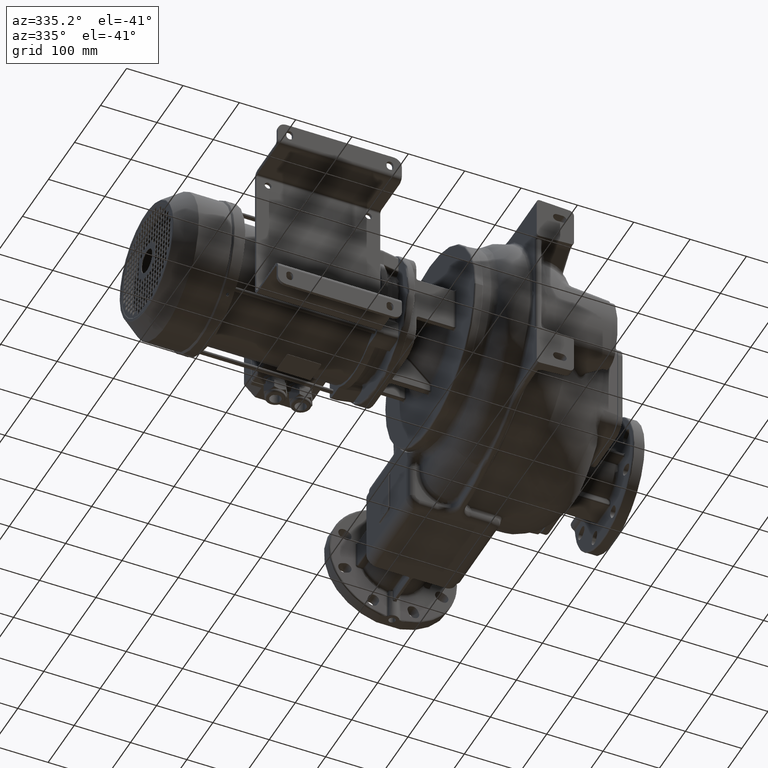
[diagram: clean part render]
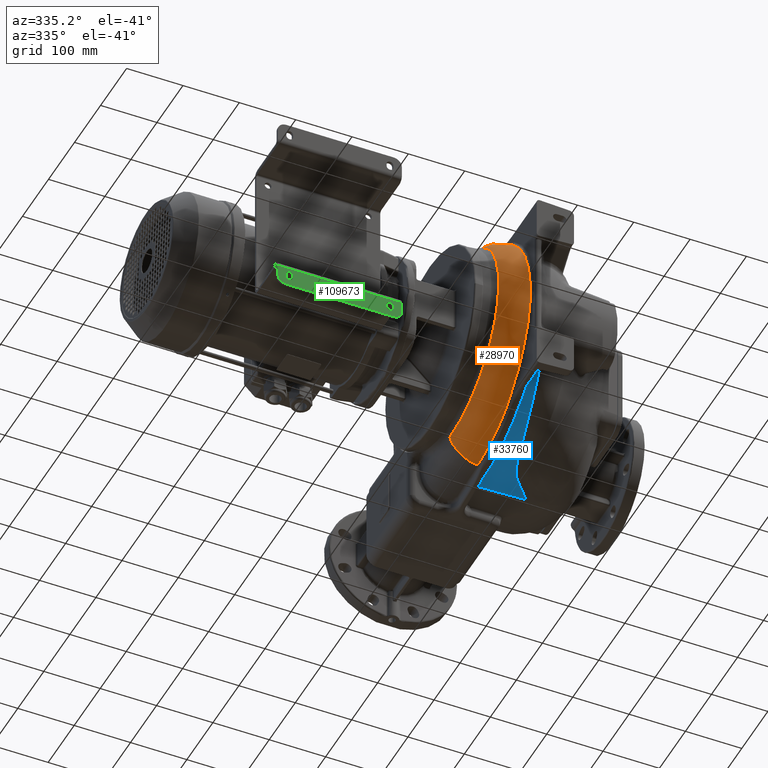
[diagram: same view with three faces highlighted in distinct colors, each labeled with its STEP entity id]
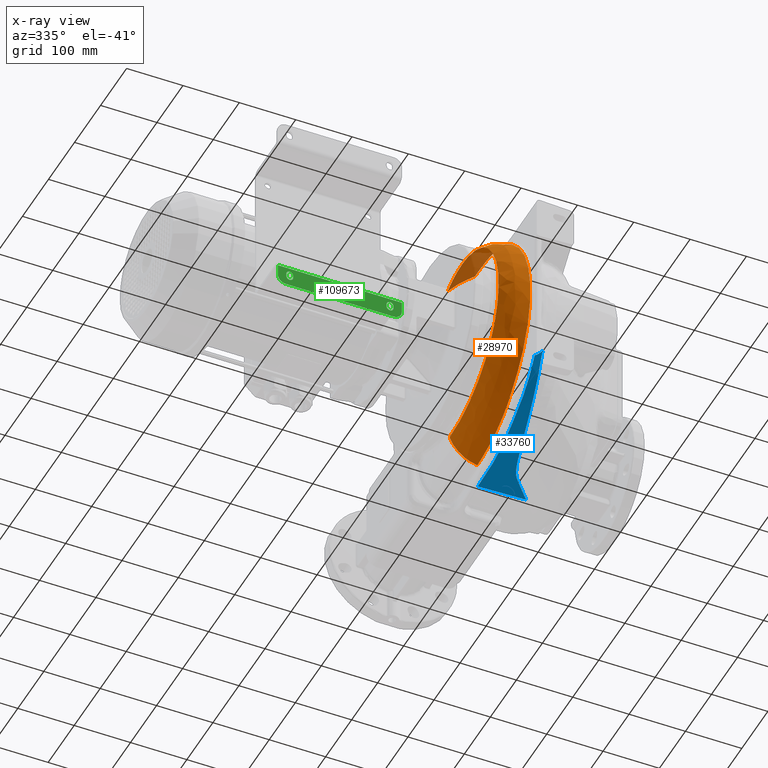
[diagram: x-ray of the same camera — body ghosted, the three highlighted faces saturated]
A machine part, auxiliary view with three faces highlighted in distinct colors.
The next image is the same camera in x-ray (body ghosted, the three faces saturated) — at least one of them is partly hidden behind the body in this view.
Their STEP definitions:

[orange] entity #28970 — the highlighted face is a freeform B-spline surface patch.
#4306=CARTESIAN_POINT('',(-9.416684251879E1,2.198767022094E2,
-1.995254930212E2));
#4307=CARTESIAN_POINT('',(-9.361539147830E1,2.198599892614E2,
-2.012862758722E2));
#4308=CARTESIAN_POINT('',(-9.159984907690E1,2.198035409127E2,
-2.068400769254E2));
#4309=CARTESIAN_POINT('',(-8.688004971270E1,2.197164609426E2,
-2.156669233408E2));
#4310=CARTESIAN_POINT('',(-7.911717179944E1,2.195961515524E2,
-2.251198556505E2));
#4311=CARTESIAN_POINT('',(-6.965939572615E1,2.194748036736E2,
-2.328752383668E2));
#4312=CARTESIAN_POINT('',(-5.886928424299E1,2.193577415574E2,
-2.386352686991E2));
#4313=CARTESIAN_POINT('',(-5.044815780028E1,2.193118446787E2,
-2.411865120035E2));
#4314=CARTESIAN_POINT('',(-4.581760230919E1,2.192862955119E2,
-2.420309093590E2));
#4315=CARTESIAN_POINT('',(-4.517971400711E1,2.192831059374E2,
-2.421368989397E2));
#4404=CARTESIAN_POINT('',(-4.520057652036E1,2.012945648818E2,
-2.403621677771E2));
#4405=CARTESIAN_POINT('',(-4.519806872358E1,2.033799629870E2,
-2.406536483446E2));
#4406=CARTESIAN_POINT('',(-4.519322657947E1,2.074877189616E2,
-2.411671713307E2));
#4407=CARTESIAN_POINT('',(-4.518565136657E1,2.134717536841E2,
-2.417547283081E2));
#4408=CARTESIAN_POINT('',(-4.518203252986E1,2.173920182448E2,
-2.420202553778E2));
#4409=CARTESIAN_POINT('',(-4.517971400711E1,2.192831059374E2,
-2.421368989397E2));
#4411=CARTESIAN_POINT('',(-9.416684251879E1,2.198767022094E2,
-1.995254930212E2));
#4412=CARTESIAN_POINT('',(-9.407725013904E1,2.100847109564E2,
-1.994574612186E2));
#4413=CARTESIAN_POINT('',(-9.389267116444E1,1.932970106015E2,
-1.981142767083E2));
#4414=CARTESIAN_POINT('',(-9.359536508671E1,1.665362472095E2,
-1.920103348928E2));
#4415=CARTESIAN_POINT('',(-9.327886241217E1,1.415711324878E2,
-1.820948290006E2));
#4416=CARTESIAN_POINT('',(-9.294028843835E1,1.182032656371E2,
-1.685462212619E2));
#4417=CARTESIAN_POINT('',(-9.257822733132E1,9.717046315025E1,
-1.516896110822E2));
#4418=CARTESIAN_POINT('',(-9.219000988661E1,7.887100707956E1,
-1.318869150503E2));
#4419=CARTESIAN_POINT('',(-9.177313388966E1,6.374473382465E1,
-1.096068029796E2));
#4420=CARTESIAN_POINT('',(-9.132463137844E1,5.210552734617E1,
-8.533870225543E1));
#4421=CARTESIAN_POINT('',(-9.084089528901E1,4.420298692060E1,
-5.958621988299E1));
#4422=CARTESIAN_POINT('',(-9.031899955044E1,4.022848769725E1,
-3.296378537401E1));
#4423=CARTESIAN_POINT('',(-8.975744364094E1,4.026581870603E1,
-6.070392006527E0));
#4424=CARTESIAN_POINT('',(-8.915387957186E1,4.430475179535E1,2.047330575376E1));
#4425=CARTESIAN_POINT('',(-8.850151632224E1,5.224524672189E1,4.610361602874E1));
#4426=CARTESIAN_POINT('',(-8.779252960426E1,6.392174821069E1,7.027381225204E1));
#4427=CARTESIAN_POINT('',(-8.701979466266E1,7.906017052550E1,9.241487978657E1));
#4428=CARTESIAN_POINT('',(-8.617376952138E1,9.732255229537E1,1.120408184767E2));
#4429=CARTESIAN_POINT('',(-8.524286933276E1,1.182812459213E2,1.287041734275E2));
#4430=CARTESIAN_POINT('',(-8.421119536122E1,1.414914967775E2,1.420580356226E2));
#4431=CARTESIAN_POINT('',(-8.305895518538E1,1.664351761190E2,1.517977795090E2));
#4432=CARTESIAN_POINT('',(-8.176548898402E1,1.925265317353E2,1.576970947774E2));
#4433=CARTESIAN_POINT('',(-8.077654001956E1,2.102873198188E2,1.589947476561E2));
#4434=CARTESIAN_POINT('',(-8.025156820779E1,2.191590052963E2,1.589754472696E2));
#4436=CARTESIAN_POINT('',(-8.025156820779E1,2.191590052963E2,1.589754472696E2));
#4437=CARTESIAN_POINT('',(-8.009205492426E1,2.218390739885E2,1.589703731581E2));
#4438=CARTESIAN_POINT('',(-7.976569099894E1,2.271965434280E2,1.588391042828E2));
#4439=CARTESIAN_POINT('',(-7.925284313603E1,2.352113116185E2,1.582804738650E2));
#4440=CARTESIAN_POINT('',(-7.871547152061E1,2.431903076760E2,1.573615123363E2));
#4441=CARTESIAN_POINT('',(-7.815242360165E1,2.511176945588E2,1.560842774233E2));
#4442=CARTESIAN_POINT('',(-7.762393087865E1,2.581404109317E2,1.546254338293E2));
#4443=CARTESIAN_POINT('',(-7.727639862865E1,2.625039264964E2,1.535454622422E2));
#4444=CARTESIAN_POINT('',(-7.713301338181E1,2.642652668738E2,1.530806877845E2));
#4446=CARTESIAN_POINT('',(-7.713301338181E1,2.642652668738E2,1.530806877845E2));
#4447=CARTESIAN_POINT('',(-7.437344202418E1,2.610861609744E2,1.555671932030E2));
#4448=CARTESIAN_POINT('',(-6.867019467310E1,2.547052451548E2,1.597645035352E2));
#4449=CARTESIAN_POINT('',(-5.977419080802E1,2.450742891012E2,1.641941496515E2));
#4450=CARTESIAN_POINT('',(-5.181119459627E1,2.363684395481E2,1.667766731549E2));
#4451=CARTESIAN_POINT('',(-4.721609365995E1,2.307161369092E2,1.676807851390E2));
#4452=CARTESIAN_POINT('',(-4.525928142582E1,2.279101150040E2,1.679816427398E2));
#4454=CARTESIAN_POINT('',(-4.525928142582E1,2.279101150040E2,1.679816427398E2));
#4455=CARTESIAN_POINT('',(-4.517867703848E1,2.257840720139E2,1.681920574513E2));
#4456=CARTESIAN_POINT('',(-4.503117790733E1,2.215792240930E2,1.685345958341E2));
#4457=CARTESIAN_POINT('',(-4.488593075591E1,2.154061194203E2,1.688299444850E2));
#4458=CARTESIAN_POINT('',(-4.485174359113E1,2.114137685214E2,1.688911636724E2));
#4459=CARTESIAN_POINT('',(-4.485005922300E1,2.094470320134E2,1.688909311784E2));
#4461=CARTESIAN_POINT('',(-4.485005922300E1,2.094470320134E2,1.688909311784E2));
#4462=CARTESIAN_POINT('',(-4.484387146770E1,2.022218077844E2,1.688900744136E2));
#4463=CARTESIAN_POINT('',(-4.483173071221E1,1.877422666248E2,1.680554965257E2));
#4464=CARTESIAN_POINT('',(-4.481333270458E1,1.662380591924E2,1.643152729931E2));
#4465=CARTESIAN_POINT('',(-4.480180580058E1,1.522025835402E2,1.601768030485E2));
#4466=CARTESIAN_POINT('',(-4.479582260635E1,1.453093788699E2,1.577072543905E2));
#4468=CARTESIAN_POINT('',(-4.479582260635E1,1.453093788699E2,1.577072543905E2));
#4469=CARTESIAN_POINT('',(-4.479325775293E1,1.423937004130E2,1.566626895949E2));
#4470=CARTESIAN_POINT('',(-4.497046870554E1,1.366542314917E2,1.544483818740E2));
#4471=CARTESIAN_POINT('',(-4.556609791123E1,1.280110821730E2,1.505952640485E2));
#4472=CARTESIAN_POINT('',(-4.578962231036E1,1.228956957141E2,1.480157151643E2));
#4473=CARTESIAN_POINT('',(-4.578681979600E1,1.204356040242E2,1.467180720611E2));
#4475=CARTESIAN_POINT('',(-4.578681979600E1,1.204356040242E2,1.467180720611E2));
#4476=CARTESIAN_POINT('',(-4.577761776077E1,1.124079814821E2,1.424836438297E2));
#4477=CARTESIAN_POINT('',(-4.575901251045E1,9.690946403487E1,1.328631765930E2));
#4478=CARTESIAN_POINT('',(-4.573055907554E1,7.581509609112E1,1.152485234600E2));
#4479=CARTESIAN_POINT('',(-4.570151436146E1,5.727037698843E1,9.474531880642E1));
#4480=CARTESIAN_POINT('',(-4.567187986935E1,4.165257167819E1,7.169874468006E1));
#4481=CARTESIAN_POINT('',(-4.564168671575E1,2.932279699128E1,4.656329763918E1));
#4482=CARTESIAN_POINT('',(-4.561103963234E1,2.055353767802E1,1.982183026193E1));
#4483=CARTESIAN_POINT('',(-4.557990539937E1,1.554102910481E1,
-8.021710706573E0));
#4484=CARTESIAN_POINT('',(-4.554824855636E1,1.441484463091E1,
-3.648569074103E1));
#4485=CARTESIAN_POINT('',(-4.551612757960E1,1.724574304191E1,
-6.500385393166E1));
#4486=CARTESIAN_POINT('',(-4.548357442695E1,2.401412308114E1,
-9.300919853171E1));
#4487=CARTESIAN_POINT('',(-4.545059984187E1,3.461797011246E1,
-1.199507205631E2));
#4488=CARTESIAN_POINT('',(-4.541725318537E1,4.888988157812E1,
-1.453220361131E2));
#4489=CARTESIAN_POINT('',(-4.538349465059E1,6.660967570012E1,
-1.686470183527E2));
#4490=CARTESIAN_POINT('',(-4.536073023286E1,8.050507949889E1,
-1.825059645238E2));
#4491=CARTESIAN_POINT('',(-4.534928334569E1,8.791316642398E1,
-1.889460815896E2));
#4493=CARTESIAN_POINT('',(-4.534928334569E1,8.791316642398E1,
-1.889460815896E2));
#4494=CARTESIAN_POINT('',(-4.534654674816E1,8.967963273930E1,
-1.904817203420E2));
#4495=CARTESIAN_POINT('',(-4.514845472029E1,9.328256395296E1,
-1.935499158603E2));
#4496=CARTESIAN_POINT('',(-4.466825781582E1,9.916722171992E1,
-1.982455629827E2));
#4497=CARTESIAN_POINT('',(-4.453229882786E1,1.030055370248E2,
-2.010694208428E2));
#4498=CARTESIAN_POINT('',(-4.453151828639E1,1.049358941290E2,
-2.024333619274E2));
#4500=CARTESIAN_POINT('',(-4.453151828639E1,1.049358941290E2,
-2.024333619274E2));
#4501=CARTESIAN_POINT('',(-4.452970029625E1,1.093365261585E2,
-2.055427315354E2));
#4502=CARTESIAN_POINT('',(-4.452596058482E1,1.183822813355E2,
-2.114422825591E2));
#4503=CARTESIAN_POINT('',(-4.452061017041E1,1.326052982714E2,
-2.192763210783E2));
#4504=CARTESIAN_POINT('',(-4.451742932346E1,1.424855075819E2,
-2.237960485444E2));
#4505=CARTESIAN_POINT('',(-4.451571365787E1,1.475110370816E2,
-2.258727182275E2));
#4507=CARTESIAN_POINT('',(-4.451571365787E1,1.475110370816E2,
-2.258727182275E2));
#4508=CARTESIAN_POINT('',(-4.451386507398E1,1.529611755041E2,
-2.281248256996E2));
#4509=CARTESIAN_POINT('',(-4.462261752965E1,1.642435068882E2,
-2.322628344673E2));
#4510=CARTESIAN_POINT('',(-4.502441863477E1,1.825368372572E2,
-2.372249815956E2));
#4511=CARTESIAN_POINT('',(-4.520816133803E1,1.949850637622E2,
-2.394802942276E2));
#4512=CARTESIAN_POINT('',(-4.520057652036E1,2.012945648818E2,
-2.403621677771E2));
#18975=VERTEX_POINT('',#4404);
#18976=VERTEX_POINT('',#4409);
#19297=VERTEX_POINT('',#4475);
#19298=VERTEX_POINT('',#4491);
#19385=VERTEX_POINT('',#4507);
#19387=VERTEX_POINT('',#4500);
#19389=VERTEX_POINT('',#4468);
#19391=VERTEX_POINT('',#4461);
#19393=VERTEX_POINT('',#4454);
#19480=VERTEX_POINT('',#4411);
#19481=VERTEX_POINT('',#4434);
#19495=VERTEX_POINT('',#4444);
#28561=CARTESIAN_POINT('',(-4.510989501510E1,2.727176717335E2,
1.578851870967E2));
#28562=CARTESIAN_POINT('',(-4.505236844996E1,2.689112312007E2,
1.592561862800E2));
#28563=CARTESIAN_POINT('',(-4.483876907299E1,2.546133604871E2,
1.638825184477E2));
#28564=CARTESIAN_POINT('',(-4.446902983124E1,2.290072147267E2,
1.688457478832E2));
#28565=CARTESIAN_POINT('',(-4.400063484999E1,1.960009638886E2,
1.693723045594E2));
#28566=CARTESIAN_POINT('',(-4.353217384073E1,1.634243431788E2,
1.641911856303E2));
#28567=CARTESIAN_POINT('',(-4.306367640090E1,1.322365154289E2,
1.535222720337E2));
#28568=CARTESIAN_POINT('',(-4.259517066088E1,1.033257861463E2,
1.377381736464E2));
#28569=CARTESIAN_POINT('',(-4.212668334364E1,7.748767489249E1,
1.173456464295E2));
#28570=CARTESIAN_POINT('',(-4.165823986841E1,5.540709039800E1,
9.296453629116E1));
#28571=CARTESIAN_POINT('',(-4.118986442526E1,3.764493958841E1,
6.530487689823E1));
#28572=CARTESIAN_POINT('',(-4.072158004449E1,2.462906781481E1,
3.514318060607E1));
#28573=CARTESIAN_POINT('',(-4.025340867129E1,1.664937016129E1,
3.298479926369E0));
#28574=CARTESIAN_POINT('',(-3.978537122974E1,1.385696340112E1,
-2.939114700380E1));
#28575=CARTESIAN_POINT('',(-3.931748768205E1,1.626700481138E1,
-6.209095609220E1));
#28576=CARTESIAN_POINT('',(-3.884977708635E1,2.376479803728E1,
-9.399036587234E1));
#28577=CARTESIAN_POINT('',(-3.838225765102E1,3.611477543578E1,
-1.243218235708E2));
#28578=CARTESIAN_POINT('',(-3.791494678273E1,5.297183281202E1,
-1.523773494827E2));
#28579=CARTESIAN_POINT('',(-3.744786114281E1,7.389474899020E1,
-1.775227073597E2));
#28580=CARTESIAN_POINT('',(-3.698101665648E1,9.836047961054E1,
-1.992084845077E2));
#28581=CARTESIAN_POINT('',(-3.651442867339E1,1.257812823902E2,
-2.169798609548E2));
#28582=CARTESIAN_POINT('',(-3.612583114413E1,1.505607114197E2,
-2.282295053292E2));
#28583=CARTESIAN_POINT('',(-3.581509588587E1,1.712089306404E2,
-2.349697692902E2));
#28584=CARTESIAN_POINT('',(-3.562094702944E1,1.843828739891E2,
-2.382226913911E2));
#28585=CARTESIAN_POINT('',(-3.546566538552E1,1.950437959484E2,
-2.402431921560E2));
#28586=CARTESIAN_POINT('',(-3.536863006717E1,2.017489624073E2,
-2.412608821561E2));
#28587=CARTESIAN_POINT('',(-3.529101124464E1,2.071254995849E2,
-2.419281446627E2));
#28588=CARTESIAN_POINT('',(-3.524250349161E1,2.104932580455E2,
-2.422856610714E2));
#28589=CARTESIAN_POINT('',(-3.520369997787E1,2.132096401217E2,
-2.425347167843E2));
#28590=CARTESIAN_POINT('',(-3.513184462691E1,2.182356166608E2,
-2.429430543580E2));
#28591=CARTESIAN_POINT('',(-3.506970046865E1,2.224027242105E2,
-2.431621307957E2));
#28592=CARTESIAN_POINT('',(-3.501725466826E1,2.257922388988E2,
-2.433813858669E2));
#28593=CARTESIAN_POINT('',(-4.817623398237E1,2.727089677562E2,
1.578829460107E2));
#28594=CARTESIAN_POINT('',(-4.812511076636E1,2.689025460377E2,
1.592537682985E2));
#28595=CARTESIAN_POINT('',(-4.793526230518E1,2.546047662382E2,
1.638794467270E2));
#28596=CARTESIAN_POINT('',(-4.760647030894E1,2.289989096945E2,
1.688415725060E2));
#28597=CARTESIAN_POINT('',(-4.718962160779E1,1.959932481692E2,
1.693668166374E2));
#28598=CARTESIAN_POINT('',(-4.677236881842E1,1.634174170862E2,
1.641844980300E2));
#28599=CARTESIAN_POINT('',(-4.635472029912E1,1.322305561050E2,
1.535145198874E2));
#28600=CARTESIAN_POINT('',(-4.593668479890E1,1.033209482329E2,
1.377295103177E2));
#28601=CARTESIAN_POINT('',(-4.551827047272E1,7.748409138057E1,
1.173362407821E2));
#28602=CARTESIAN_POINT('',(-4.509948545642E1,5.540487347608E1,
9.295457120568E1));
#28603=CARTESIAN_POINT('',(-4.468033775135E1,3.764418093045E1,
6.529454884438E1));
#28604=CARTESIAN_POINT('',(-4.426083499470E1,2.462983787365E1,
3.513269986518E1));
#28605=CARTESIAN_POINT('',(-4.384098466749E1,1.665171633764E1,
3.288071076151E0));
#28606=CARTESIAN_POINT('',(-4.342079406408E1,1.386090693511E1,
-2.940124485915E1));
#28607=CARTESIAN_POINT('',(-4.300027020851E1,1.627253647147E1,
-6.210048994581E1));
#28608=CARTESIAN_POINT('',(-4.257941987768E1,2.377187290877E1,
-9.399907077109E1));
#28609=CARTESIAN_POINT('',(-4.215824963748E1,3.612330727030E1,
-1.243294263170E2));
#28610=CARTESIAN_POINT('',(-4.173676574338E1,5.298168847297E1,
-1.523835743377E2));
#28611=CARTESIAN_POINT('',(-4.131497454222E1,7.390574383143E1,
-1.775272837070E2));
#28612=CARTESIAN_POINT('',(-4.089288088725E1,9.837237386213E1,
-1.992111566357E2));
#28613=CARTESIAN_POINT('',(-4.047049342658E1,1.257937808462E2,
-2.169803983120E2));
#28614=CARTESIAN_POINT('',(-4.011825592944E1,1.505734201581E2,
-2.282281046768E2));
#28615=CARTESIAN_POINT('',(-3.983633092248E1,1.712216080530E2,
-2.349667451448E2));
#28616=CARTESIAN_POINT('',(-3.966006294411E1,1.843954427390E2,
-2.382186313243E2));
#28617=CARTESIAN_POINT('',(-3.951901788184E1,1.950562224595E2,
-2.402382912287E2));
#28618=CARTESIAN_POINT('',(-3.943084944437E1,2.017612756538E2,
-2.412554510694E2));
#28619=CARTESIAN_POINT('',(-3.936030206659E1,2.071377099210E2,
-2.419222949177E2));
#28620=CARTESIAN_POINT('',(-3.931620703755E1,2.105053967835E2,
-2.422795484357E2));
#28621=CARTESIAN_POINT('',(-3.928093902809E1,2.132217089417E2,
-2.425283747920E2));
#28622=CARTESIAN_POINT('',(-3.921558566990E1,2.182475626829E2,
-2.429362972414E2));
#28623=CARTESIAN_POINT('',(-3.915913112947E1,2.224146735191E2,
-2.431552036013E2));
#28624=CARTESIAN_POINT('',(-3.911124155113E1,2.258042225120E2,
-2.433744312832E2));
#28625=CARTESIAN_POINT('',(-5.423147040671E1,2.725571166066E2,
1.575316432579E2));
#28626=CARTESIAN_POINT('',(-5.418930658605E1,2.687573494192E2,
1.588969213560E2));
#28627=CARTESIAN_POINT('',(-5.403271444659E1,2.544851645692E2,
1.635027112957E2));
#28628=CARTESIAN_POINT('',(-5.376141969812E1,2.289290701063E2,
1.684353422814E2));
#28629=CARTESIAN_POINT('',(-5.341726942071E1,1.959949143783E2,
1.689343978373E2));
#28630=CARTESIAN_POINT('',(-5.307257362699E1,1.634970486604E2,
1.637388134502E2));
#28631=CARTESIAN_POINT('',(-5.272732393855E1,1.323922349038E2,
1.530698758167E2));
#28632=CARTESIAN_POINT('',(-5.238151385678E1,1.035661091451E2,
1.373011581885E2));
#28633=CARTESIAN_POINT('',(-5.203513586931E1,7.781131199312E1,
1.169398744167E2));
#28634=CARTESIAN_POINT('',(-5.168818313380E1,5.580977149072E1,
9.260577753764E1));
#28635=CARTESIAN_POINT('',(-5.134064913995E1,3.811942035621E1,
6.500823394633E1));
#28636=CARTESIAN_POINT('',(-5.099252700157E1,2.516524897344E1,
3.492250177512E1));
#28637=CARTESIAN_POINT('',(-5.064381005702E1,1.723454541935E1,
3.165798441096E0));
#28638=CARTESIAN_POINT('',(-5.029449179635E1,1.447618636898E1,
-2.942611792321E1));
#28639=CARTESIAN_POINT('',(-4.994456560751E1,1.690356142206E1,
-6.202125026887E1));
#28640=CARTESIAN_POINT('',(-4.959402487134E1,2.440076629735E1,
-9.381208206431E1));
#28641=CARTESIAN_POINT('',(-4.924286309555E1,3.673164310911E1,
-1.240343152797E2));
#28642=CARTESIAN_POINT('',(-4.889107369064E1,5.355113986581E1,
-1.519832756459E2));
#28643=CARTESIAN_POINT('',(-4.853865114193E1,7.441871661292E1,
-1.770279407588E2));
#28644=CARTESIAN_POINT('',(-4.818558668235E1,9.881259721304E1,
-1.986218948353E2));
#28645=CARTESIAN_POINT('',(-4.783188298868E1,1.261468072917E2,
-2.163129741398E2));
#28646=CARTESIAN_POINT('',(-4.753657167029E1,1.508436392191E2,
-2.275072008173E2));
#28647=CARTESIAN_POINT('',(-4.730001623216E1,1.714207206276E2,
-2.342108826033E2));
#28648=CARTESIAN_POINT('',(-4.715201564764E1,1.845484595902E2,
-2.374443420186E2));
#28649=CARTESIAN_POINT('',(-4.703354479408E1,1.951713932060E2,
-2.394513416243E2));
#28650=CARTESIAN_POINT('',(-4.695946413003E1,2.018523853842E2,
-2.404614792618E2));
#28651=CARTESIAN_POINT('',(-4.690016817806E1,2.072098711402E2,
-2.411232963907E2));
#28652=CARTESIAN_POINT('',(-4.686310083418E1,2.105654416498E2,
-2.414775950188E2));
#28653=CARTESIAN_POINT('',(-4.683346953836E1,2.132707278446E2,
-2.417241080517E2));
#28654=CARTESIAN_POINT('',(-4.677848371641E1,2.182776638110E2,
-2.421281355454E2));
#28655=CARTESIAN_POINT('',(-4.673114117208E1,2.224433953760E2,
-2.423447614297E2));
#28656=CARTESIAN_POINT('',(-4.669049141834E1,2.258338705191E2,
-2.425616801271E2));
#28657=CARTESIAN_POINT('',(-6.297148831498E1,2.719842718348E2,
1.561155923470E2));
#28658=CARTESIAN_POINT('',(-6.293534608689E1,2.682125478818E2,
1.574621649303E2));
#28659=CARTESIAN_POINT('',(-6.280110261188E1,2.540473002073E2,
1.620016285063E2));
#28660=CARTESIAN_POINT('',(-6.256843614704E1,2.286932036395E2,
1.668409000678E2));
#28661=CARTESIAN_POINT('',(-6.227314447277E1,1.960391259347E2,
1.672671309992E2));
#28662=CARTESIAN_POINT('',(-6.197726763792E1,1.638375418206E2,
1.620486683290E2));
#28663=CARTESIAN_POINT('',(-6.168082182047E1,1.330363275438E2,
1.514099272572E2));
#28664=CARTESIAN_POINT('',(-6.138382586725E1,1.045116967038E2,
1.357260655316E2));
#28665=CARTESIAN_POINT('',(-6.108629536647E1,7.904650908389E1,
1.155041947371E2));
#28666=CARTESIAN_POINT('',(-6.078824576118E1,5.731289924576E1,
9.136219295361E1));
#28667=CARTESIAN_POINT('',(-6.048969158537E1,3.985932377344E1,
6.400576004187E1));
#28668=CARTESIAN_POINT('',(-6.019064495140E1,2.710194915129E1,
3.420470226055E1));
#28669=CARTESIAN_POINT('',(-5.989111673620E1,1.932027528319E1,
2.769130330352E0));
#28670=CARTESIAN_POINT('',(-5.959111659751E1,1.665676802387E1,
-2.947374044231E1));
#28671=CARTESIAN_POINT('',(-5.929065263002E1,1.912007539670E1,
-6.170161452685E1));
#28672=CARTESIAN_POINT('',(-5.898973181906E1,2.659145058619E1,
-9.311746583043E1));
#28673=CARTESIAN_POINT('',(-5.868836054324E1,3.883392463748E1,
-1.229678572161E2));
#28674=CARTESIAN_POINT('',(-5.838654450481E1,5.550369273911E1,
-1.505589040213E2));
#28675=CARTESIAN_POINT('',(-5.808429083864E1,7.616342628706E1,
-1.752698626249E2));
#28676=CARTESIAN_POINT('',(-5.778160136348E1,1.002963505077E2,
-1.965637094281E2));
#28677=CARTESIAN_POINT('',(-5.747849596575E1,1.273229578706E2,
-2.139964327972E2));
#28678=CARTESIAN_POINT('',(-5.722553399785E1,1.517310699690E2,
-2.250158098050E2));
#28679=CARTESIAN_POINT('',(-5.702299271166E1,1.720618210998E2,
-2.316063627705E2));
#28680=CARTESIAN_POINT('',(-5.689629413229E1,1.850304392397E2,
-2.347807352592E2));
#28681=CARTESIAN_POINT('',(-5.679490243692E1,1.955230322189E2,
-2.367475106254E2));
#28682=CARTESIAN_POINT('',(-5.673150978341E1,2.021212669965E2,
-2.377355147127E2));
#28683=CARTESIAN_POINT('',(-5.668077097707E1,2.074136126190E2,
-2.383815871329E2));
#28684=CARTESIAN_POINT('',(-5.664904429394E1,2.107276314463E2,
-2.387266897971E2));
#28685=CARTESIAN_POINT('',(-5.662369218585E1,2.133951862998E2,
-2.389660910762E2));
#28686=CARTESIAN_POINT('',(-5.657667069121E1,2.183368003265E2,
-2.393581158554E2));
#28687=CARTESIAN_POINT('',(-5.653644036902E1,2.224966777805E2,
-2.395673068538E2));
#28688=CARTESIAN_POINT('',(-5.650121621780E1,2.258911386894E2,
-2.397763283827E2));
#28689=CARTESIAN_POINT('',(-7.131167052980E1,2.710635589171E2,
1.538014686552E2));
#28690=CARTESIAN_POINT('',(-7.127988061870E1,2.673383311497E2,
1.551193920903E2));
#28691=CARTESIAN_POINT('',(-7.116174680981E1,2.533499042810E2,
1.595577631675E2));
#28692=CARTESIAN_POINT('',(-7.095663444170E1,2.283267025511E2,
1.642579563553E2));
#28693=CARTESIAN_POINT('',(-7.069560787476E1,1.961258959211E2,
1.645825493885E2));
#28694=CARTESIAN_POINT('',(-7.043333680853E1,1.643986218226E2,
1.593430212976E2));
#28695=CARTESIAN_POINT('',(-7.016981213231E1,1.340785104135E2,
1.487675808888E2));
#28696=CARTESIAN_POINT('',(-6.990503067507E1,1.060269256849E2,
1.332327251137E2));
#28697=CARTESIAN_POINT('',(-6.963898577512E1,8.101155702329E1,
1.132442722443E2));
#28698=CARTESIAN_POINT('',(-6.937167164336E1,5.968958548698E1,
8.941608689511E1));
#28699=CARTESIAN_POINT('',(-6.910308207006E1,4.259523382601E1,
6.244715277989E1));
#28700=CARTESIAN_POINT('',(-6.883320792082E1,3.013165529117E1,
3.309791272798E1));
#28701=CARTESIAN_POINT('',(-6.856203901547E1,2.256712323666E1,
2.166710868974E0));
#28702=CARTESIAN_POINT('',(-6.828956444551E1,2.003515563982E1,
-2.953303346498E1));
#28703=CARTESIAN_POINT('',(-6.801577233436E1,2.253813904847E1,
-6.119439382752E1));
#28704=CARTESIAN_POINT('',(-6.774065095179E1,2.995405821250E1,
-9.203669808412E1));
#28705=CARTESIAN_POINT('',(-6.746418982281E1,4.204582279788E1,
-1.213231960234E2));
#28706=CARTESIAN_POINT('',(-6.718638009034E1,5.847264582133E1,
-1.483763467665E2));
#28707=CARTESIAN_POINT('',(-6.690721731537E1,7.880316461511E1,
-1.725907450185E2));
#28708=CARTESIAN_POINT('',(-6.662669353307E1,1.025292123872E2,
-1.934431448127E2));
#28709=CARTESIAN_POINT('',(-6.634482475867E1,1.290819944448E2,
-2.105012378988E2));
#28710=CARTESIAN_POINT('',(-6.610877666028E1,1.530499445746E2,
-2.212719880884E2));
#28711=CARTESIAN_POINT('',(-6.591930403500E1,1.730078519737E2,
-2.277050689156E2));
#28712=CARTESIAN_POINT('',(-6.580057459056E1,1.857367244506E2,
-2.307988830883E2));
#28713=CARTESIAN_POINT('',(-6.570544158140E1,1.960336197484E2,
-2.327119879340E2));
#28714=CARTESIAN_POINT('',(-6.564591329591E1,2.025078698746E2,
-2.336710243837E2));
#28715=CARTESIAN_POINT('',(-6.559824199432E1,2.077027252620E2,
-2.342968785699E2));
#28716=CARTESIAN_POINT('',(-6.556840069522E1,2.109547718436E2,
-2.346303530037E2));
#28717=CARTESIAN_POINT('',(-6.554453699108E1,2.135662332113E2,
-2.348608702260E2));
#28718=CARTESIAN_POINT('',(-6.550040636381E1,2.184096721632E2,
-2.352379828945E2));
#28719=CARTESIAN_POINT('',(-6.546283207832E1,2.225587382393E2,
-2.354383896054E2));
#28720=CARTESIAN_POINT('',(-6.542935555260E1,2.259603819810E2,
-2.356376823909E2));
#28721=CARTESIAN_POINT('',(-7.910064499128E1,2.697538679649E2,
1.504653867690E2));
#28722=CARTESIAN_POINT('',(-7.907390225309E1,2.660961050631E2,
1.517431824619E2));
#28723=CARTESIAN_POINT('',(-7.897431476220E1,2.523639934095E2,
1.560403700374E2));
#28724=CARTESIAN_POINT('',(-7.880009555494E1,2.278187200917E2,
1.605491079486E2));
#28725=CARTESIAN_POINT('',(-7.857614220814E1,1.962688705711E2,
1.607399746064E2));
#28726=CARTESIAN_POINT('',(-7.834905837704E1,1.652186910795E2,
1.554831683456E2));
#28727=CARTESIAN_POINT('',(-7.811899431479E1,1.355810255232E2,
1.450111525401E2));
#28728=CARTESIAN_POINT('',(-7.788609936683E1,1.081959225636E2,
1.297010667398E2));
#28729=CARTESIAN_POINT('',(-7.765050931260E1,8.380965334321E1,
1.100556037041E2));
#28730=CARTESIAN_POINT('',(-7.741235187573E1,6.305863157650E1,
8.668170457460E1));
#28731=CARTESIAN_POINT('',(-7.717174534837E1,4.645764563853E1,
6.026774269683E1));
#28732=CARTESIAN_POINT('',(-7.692879550759E1,3.439240786325E1,
3.156001931914E1));
#28733=CARTESIAN_POINT('',(-7.668359873378E1,2.711647713148E1,
1.339607268278E0));
#28734=CARTESIAN_POINT('',(-7.643624334598E1,2.475200312856E1,
-2.959991061345E1));
#28735=CARTESIAN_POINT('',(-7.618681015487E1,2.729384689711E1,
-6.047334752765E1));
#28736=CARTESIAN_POINT('',(-7.593537489611E1,3.461666498075E1,
-9.052284778981E1));
#28737=CARTESIAN_POINT('',(-7.568201048403E1,4.648438161377E1,
-1.190346565364E2));
#28738=CARTESIAN_POINT('',(-7.542678833599E1,6.256149495777E1,
-1.453534907770E2));
#28739=CARTESIAN_POINT('',(-7.516978177563E1,8.242587945395E1,
-1.688945797522E2));
#28740=CARTESIAN_POINT('',(-7.491105847584E1,1.055820946968E2,
-1.891529613144E2));
#28741=CARTESIAN_POINT('',(-7.465070728462E1,1.314767770371E2,
-2.057115956019E2));
#28742=CARTESIAN_POINT('',(-7.443241456910E1,1.548375979338E2,
-2.161549845745E2));
#28743=CARTESIAN_POINT('',(-7.425707268859E1,1.742835975064E2,
-2.223835155854E2));
#28744=CARTESIAN_POINT('',(-7.414715327564E1,1.866842456361E2,
-2.253740855021E2));
#28745=CARTESIAN_POINT('',(-7.405905444391E1,1.967138052966E2,
-2.272193888203E2));
#28746=CARTESIAN_POINT('',(-7.400392138699E1,2.030188963952E2,
-2.281423089223E2));
#28747=CARTESIAN_POINT('',(-7.395977377058E1,2.080807782680E2,
-2.287432841947E2));
#28748=CARTESIAN_POINT('',(-7.393211330552E1,2.112485822264E2,
-2.290626223909E2));
#28749=CARTESIAN_POINT('',(-7.390997106314E1,2.137840304685E2,
-2.292824497166E2));
#28750=CARTESIAN_POINT('',(-7.386921759692E1,2.184926861163E2,
-2.296415981590E2));
#28751=CARTESIAN_POINT('',(-7.383464867758E1,2.226239154083E2,
-2.298317851995E2));
#28752=CARTESIAN_POINT('',(-7.380346767580E1,2.260372095810E2,
-2.300193521268E2));
#28753=CARTESIAN_POINT('',(-8.493556572348E1,2.682789070696E2,
1.466425225511E2));
#28754=CARTESIAN_POINT('',(-8.491465516828E1,2.646986448286E2,
1.478749468178E2));
#28755=CARTESIAN_POINT('',(-8.483656952984E1,2.512608985620E2,
1.520127640947E2));
#28756=CARTESIAN_POINT('',(-8.469863153120E1,2.272638433289E2,
1.563071825554E2));
#28757=CARTESIAN_POINT('',(-8.451911353423E1,1.964588302140E2,
1.563524510227E2));
#28758=CARTESIAN_POINT('',(-8.433513156549E1,1.661810914131E2,
1.510840370546E2));
#28759=CARTESIAN_POINT('',(-8.414699702949E1,1.373193730989E2,
1.407384710826E2));
#28760=CARTESIAN_POINT('',(-8.395500052123E1,1.106892940597E2,
1.256927695105E2));
#28761=CARTESIAN_POINT('',(-8.375940017788E1,8.701284993205E1,
1.064452211974E2));
#28762=CARTESIAN_POINT('',(-8.356042896227E1,6.690316084568E1,
8.359412517910E1));
#28763=CARTESIAN_POINT('',(-8.335829517867E1,5.085343295038E1,
5.781515826991E1));
#28764=CARTESIAN_POINT('',(-8.315318067657E1,3.923020521369E1,
2.983809240648E1));
#28765=CARTESIAN_POINT('',(-8.294524597771E1,3.227104129379E1,
4.241139535416E-1));
#28766=CARTESIAN_POINT('',(-8.273463356269E1,3.008591871136E1,
-2.965579601225E1));
#28767=CARTESIAN_POINT('',(-8.252147007893E1,3.266186156880E1,
-5.964102851047E1));
#28768=CARTESIAN_POINT('',(-8.230587049419E1,3.987038500334E1,
-8.879936974194E1));
#28769=CARTESIAN_POINT('',(-8.208794179812E1,5.147710296253E1,
-1.164427848891E2));
#28770=CARTESIAN_POINT('',(-8.186778559655E1,6.715293653660E1,
-1.419407855119E2));
#28771=CARTESIAN_POINT('',(-8.164550199375E1,8.648654819396E1,
-1.647314979197E2));
#28772=CARTESIAN_POINT('',(-8.142118384602E1,1.089971348064E2,
-1.843301651574E2));
#28773=CARTESIAN_POINT('',(-8.119493920263E1,1.341489240007E2,
-2.003365266387E2));
#28774=CARTESIAN_POINT('',(-8.100484224214E1,1.568264681378E2,
-2.104201863970E2));
#28775=CARTESIAN_POINT('',(-8.085191978121E1,1.756975083443E2,
-2.164255535237E2));
#28776=CARTESIAN_POINT('',(-8.075596495198E1,1.877299704320E2,
-2.193043136256E2));
#28777=CARTESIAN_POINT('',(-8.067900161273E1,1.974599603063E2,
-2.210767980613E2));
#28778=CARTESIAN_POINT('',(-8.063081715504E1,2.035755855237E2,
-2.219612254960E2));
#28779=CARTESIAN_POINT('',(-8.059222789418E1,2.084884792051E2,
-2.225358858327E2));
#28780=CARTESIAN_POINT('',(-8.056802847707E1,2.115622210795E2,
-2.228403971704E2));
#28781=CARTESIAN_POINT('',(-8.054863432507E1,2.140130690398E2,
-2.230491001250E2));
#28782=CARTESIAN_POINT('',(-8.051308867110E1,2.185693847573E2,
-2.233894577642E2));
#28783=CARTESIAN_POINT('',(-8.048296018392E1,2.226768486900E2,
-2.235691580572E2));
#28784=CARTESIAN_POINT('',(-8.045563772681E1,2.261054406869E2,
-2.237443069142E2));
#28785=CARTESIAN_POINT('',(-8.903268079654E1,2.668339390899E2,
1.428283141077E2));
#28786=CARTESIAN_POINT('',(-8.901638089537E1,2.633312389787E2,
1.440164988743E2));
#28787=CARTESIAN_POINT('',(-8.895540688845E1,2.501878614926E2,
1.479991509995E2));
#28788=CARTESIAN_POINT('',(-8.884708109132E1,2.267375817695E2,
1.520863750148E2));
#28789=CARTESIAN_POINT('',(-8.870523309856E1,1.966731555053E2,
1.519940052444E2));
#28790=CARTESIAN_POINT('',(-8.855921480484E1,1.671616677085E2,
1.467202452815E2));
#28791=CARTESIAN_POINT('',(-8.840943666331E1,1.390684086863E2,
1.365052598479E2));
#28792=CARTESIAN_POINT('',(-8.825626221450E1,1.131852891580E2,
1.217257432597E2));
#28793=CARTESIAN_POINT('',(-8.810000285814E1,9.021075348729E1,
1.028756173862E2));
#28794=CARTESIAN_POINT('',(-8.794092814535E1,7.073528218459E1,
8.054479415486E1));
#28795=CARTESIAN_POINT('',(-8.777926996261E1,5.523102032956E1,
5.539668346008E1));
#28796=CARTESIAN_POINT('',(-8.761522363237E1,4.404568275021E1,
2.814507974091E1));
#28797=CARTESIAN_POINT('',(-8.744895507437E1,3.740099103250E1,
-4.681074234336E-1));
#28798=CARTESIAN_POINT('',(-8.728060606795E1,3.539470729150E1,
-2.969389697574E1));
#28799=CARTESIAN_POINT('',(-8.711029812702E1,3.800579917592E1,
-5.879572191324E1));
#28800=CARTESIAN_POINT('',(-8.693813791953E1,4.510228011351E1,
-8.706658783293E1));
#28801=CARTESIAN_POINT('',(-8.676422200196E1,5.645099931798E1,
-1.138439030120E2));
#28802=CARTESIAN_POINT('',(-8.658864035067E1,7.172880478060E1,
-1.385218572625E2));
#28803=CARTESIAN_POINT('',(-8.641148043169E1,9.053465881248E1,
-1.605615146661E2));
#28804=CARTESIAN_POINT('',(-8.623282351248E1,1.124019648861E2,
-1.794985054137E2));
#28805=CARTESIAN_POINT('',(-8.605276194003E1,1.368121895920E2,
-1.949496394700E2));
#28806=CARTESIAN_POINT('',(-8.590158293716E1,1.588065325278E2,
-2.046705867539E2));
#28807=CARTESIAN_POINT('',(-8.578003673383E1,1.771019813789E2,
-2.104502971801E2));
#28808=CARTESIAN_POINT('',(-8.570380056264E1,1.887655752432E2,
-2.132156823084E2));
#28809=CARTESIAN_POINT('',(-8.564266888459E1,1.981953110137E2,
-2.149141284071E2));
#28810=CARTESIAN_POINT('',(-8.560440498237E1,2.041209436955E2,
-2.157593115458E2));
#28811=CARTESIAN_POINT('',(-8.557377011588E1,2.088842957517E2,
-2.163070541923E2));
#28812=CARTESIAN_POINT('',(-8.555455009562E1,2.118638731244E2,
-2.165963878335E2));
#28813=CARTESIAN_POINT('',(-8.553913440543E1,2.142302357215E2,
-2.167937148481E2));
#28814=CARTESIAN_POINT('',(-8.551098750686E1,2.186322628015E2,
-2.171147018929E2));
#28815=CARTESIAN_POINT('',(-8.548714439834E1,2.227129293762E2,
-2.172833464533E2));
#28816=CARTESIAN_POINT('',(-8.546544059459E1,2.261584762881E2,
-2.174453297553E2));
#28817=CARTESIAN_POINT('',(-9.176329044380E1,2.655981600086E2,
1.395208055217E2));
#28818=CARTESIAN_POINT('',(-9.174967890358E1,2.621633542491E2,
1.406727065102E2));
#28819=CARTESIAN_POINT('',(-9.169876927500E1,2.492771248516E2,
1.445286576783E2));
#28820=CARTESIAN_POINT('',(-9.160843440971E1,2.263010858701E2,
1.484502824516E2));
#28821=CARTESIAN_POINT('',(-9.149056986496E1,1.968732704631E2,
1.482554388515E2));
#28822=CARTESIAN_POINT('',(-9.136981980025E1,1.680155861455E2,
1.429913554786E2));
#28823=CARTESIAN_POINT('',(-9.124665040174E1,1.405740597590E2,
1.329000489898E2));
#28824=CARTESIAN_POINT('',(-9.112145584485E1,1.153214071837E2,
1.183570431239E2));
#28825=CARTESIAN_POINT('',(-9.099456224450E1,9.293716708933E1,
9.985202857677E1));
#28826=CARTESIAN_POINT('',(-9.086624161874E1,7.399372743837E1,
7.796765352767E1));
#28827=CARTESIAN_POINT('',(-9.073671992752E1,5.894640941546E1,
5.335712367456E1));
#28828=CARTESIAN_POINT('',(-9.060618109810E1,4.812784136455E1,
2.672118313405E1));
#28829=CARTESIAN_POINT('',(-9.047477553387E1,4.174695637345E1,
-1.213874719072E0));
#28830=CARTESIAN_POINT('',(-9.034262663291E1,3.989152523577E1,
-2.971684379723E1));
#28831=CARTESIAN_POINT('',(-9.020983568626E1,4.253374997968E1,
-5.807059962266E1));
#28832=CARTESIAN_POINT('',(-9.007648782313E1,4.953844013226E1,
-8.558861070789E1));
#28833=CARTESIAN_POINT('',(-8.994265713970E1,6.067297922966E1,
-1.116290400158E2));
#28834=CARTESIAN_POINT('',(-8.980841061184E1,7.561849012992E1,
-1.356063548616E2));
#28835=CARTESIAN_POINT('',(-8.967381200775E1,9.398173427644E1,
-1.570006464559E2));
#28836=CARTESIAN_POINT('',(-8.953891971943E1,1.153071096777E2,
-1.753646733762E2));
#28837=CARTESIAN_POINT('',(-8.940379957660E1,1.390895948984E2,
-1.903298457931E2));
#28838=CARTESIAN_POINT('',(-8.929103876021E1,1.605025548172E2,
-1.997282248366E2));
#28839=CARTESIAN_POINT('',(-8.920078578187E1,1.783060028325E2,
-2.053035078895E2));
#28840=CARTESIAN_POINT('',(-8.914434544531E1,1.896533244440E2,
-2.079642244495E2));
#28841=CARTESIAN_POINT('',(-8.909918600511E1,1.988250067999E2,
-2.095929157296E2));
#28842=CARTESIAN_POINT('',(-8.907096188660E1,2.045870571364E2,
-2.104004109494E2));
#28843=CARTESIAN_POINT('',(-8.904839313842E1,2.092214311175E2,
-2.109217775637E2));
#28844=CARTESIAN_POINT('',(-8.903423594011E1,2.121198867164E2,
-2.111960236183E2));
#28845=CARTESIAN_POINT('',(-8.902287768114E1,2.144135488582E2,
-2.113819308823E2));
#28846=CARTESIAN_POINT('',(-8.900222488362E1,2.186813536942E2,
-2.116831612988E2));
#28847=CARTESIAN_POINT('',(-8.898475953937E1,2.227371033780E2,
-2.118395888162E2));
#28848=CARTESIAN_POINT('',(-8.896879867354E1,2.261984623343E2,
-2.119877569397E2));
#28849=CARTESIAN_POINT('',(-9.392034070598E1,2.642839695367E2,
1.359590041575E2));
#28850=CARTESIAN_POINT('',(-9.391073087890E1,2.609220017216E2,
1.370714834778E2));
#28851=CARTESIAN_POINT('',(-9.387483860712E1,2.483117387943E2,
1.407894892798E2));
#28852=CARTESIAN_POINT('',(-9.381146080872E1,2.258454874175E2,
1.445289316341E2));
#28853=CARTESIAN_POINT('',(-9.372927420860E1,1.971043465831E2,
1.442173905381E2));
#28854=CARTESIAN_POINT('',(-9.364551435417E1,1.689546465514E2,
1.389569470016E2));
#28855=CARTESIAN_POINT('',(-9.356045608778E1,1.422217894019E2,
1.289926872385E2));
#28856=CARTESIAN_POINT('',(-9.347432685210E1,1.176575935170E2,
1.146998836646E2));
#28857=CARTESIAN_POINT('',(-9.338731018901E1,9.592072294895E1,
9.656452591737E1));
#28858=CARTESIAN_POINT('',(-9.329955528767E1,7.756335818679E1,
7.516208944756E1));
#28859=CARTESIAN_POINT('',(-9.321118268411E1,6.302184402795E1,
5.113520399075E1));
#28860=CARTESIAN_POINT('',(-9.312228670741E1,5.261164191775E1,
2.517072903758E1));
#28861=CARTESIAN_POINT('',(-9.303294128617E1,4.652699396143E1,
-2.021923107583E0));
#28862=CARTESIAN_POINT('',(-9.294320449103E1,4.484404548694E1,
-2.973096429583E1));
#28863=CARTESIAN_POINT('',(-9.285312192164E1,4.752694154885E1,
-5.726066695823E1));
#28864=CARTESIAN_POINT('',(-9.276273094614E1,5.443639592478E1,
-8.394714486088E1));
#28865=CARTESIAN_POINT('',(-9.267206440982E1,6.533986930752E1,
-1.091716349594E2));
#28866=CARTESIAN_POINT('',(-9.258115349403E1,7.992275188665E1,
-1.323712440749E2));
#28867=CARTESIAN_POINT('',(-9.249003040287E1,9.780003504867E1,
-1.530473986664E2));
#28868=CARTESIAN_POINT('',(-9.239872703366E1,1.185279615273E2,
-1.707721579892E2));
#28869=CARTESIAN_POINT('',(-9.230728285138E1,1.416162175758E2,
-1.851934795478E2));
#28870=CARTESIAN_POINT('',(-9.223098081148E1,1.623845432436E2,
-1.942294682731E2));
#28871=CARTESIAN_POINT('',(-9.216991427353E1,1.796415018433E2,
-1.995741749326E2));
#28872=CARTESIAN_POINT('',(-9.213172927716E1,1.906371405625E2,
-2.021163806372E2));
#28873=CARTESIAN_POINT('',(-9.210117715740E1,1.995216803947E2,
-2.036657867050E2));
#28874=CARTESIAN_POINT('',(-9.208208369562E1,2.051015916525E2,
-2.044302889384E2));
#28875=CARTESIAN_POINT('',(-9.206681825958E1,2.095922187765E2,
-2.049214520819E2));
#28876=CARTESIAN_POINT('',(-9.205723927892E1,2.124004557869E2,
-2.051783855792E2));
#28877=CARTESIAN_POINT('',(-9.204954895507E1,2.146134459822E2,
-2.053511707613E2));
#28878=CARTESIAN_POINT('',(-9.203560409504E1,2.187304343981E2,
-2.056296115275E2));
#28879=CARTESIAN_POINT('',(-9.202379208817E1,2.227562858391E2,
-2.057717934922E2));
#28880=CARTESIAN_POINT('',(-9.201301445027E1,2.262365310323E2,
-2.059038182437E2));
#28881=CARTESIAN_POINT('',(-9.498401655478E1,2.633849604091E2,
1.335037127903E2));
#28882=CARTESIAN_POINT('',(-9.497768301634E1,2.600720534014E2,
1.345859952990E2));
#28883=CARTESIAN_POINT('',(-9.495402973830E1,2.476484831360E2,
1.381973420353E2));
#28884=CARTESIAN_POINT('',(-9.491225663919E1,2.255324799072E2,
1.417895117389E2));
#28885=CARTESIAN_POINT('',(-9.485799727503E1,1.972729156812E2,
1.413699776845E2));
#28886=CARTESIAN_POINT('',(-9.480255445325E1,1.696288170369E2,
1.360873074526E2));
#28887=CARTESIAN_POINT('',(-9.474606604601E1,1.434102252178E2,
1.261912799515E2));
#28888=CARTESIAN_POINT('',(-9.468864907034E1,1.193527987661E2,
1.120591028244E2));
#28889=CARTESIAN_POINT('',(-9.463039903510E1,9.809860227009E1,
9.417574319904E1));
#28890=CARTESIAN_POINT('',(-9.457139416970E1,8.018339923544E1,
7.311261895462E1));
#28891=CARTESIAN_POINT('',(-9.451169775916E1,6.602785639932E1,
4.950528926775E1));
#28892=CARTESIAN_POINT('',(-9.445135848387E1,5.593305852144E1,
2.403060528506E1));
#28893=CARTESIAN_POINT('',(-9.439041350185E1,5.008078479263E1,
-2.614704372523E0));
#28894=CARTESIAN_POINT('',(-9.432889089940E1,4.853717174361E1,
-2.973381703691E1));
#28895=CARTESIAN_POINT('',(-9.426681146875E1,5.125926789568E1,
-5.664776678782E1));
#28896=CARTESIAN_POINT('',(-9.420419122532E1,5.810395790603E1,
-8.271059739721E1));
#28897=CARTESIAN_POINT('',(-9.414104365701E1,6.883833910877E1,
-1.073219412885E2));
#28898=CARTESIAN_POINT('',(-9.407738145807E1,8.315093557243E1,
-1.299370266365E2));
#28899=CARTESIAN_POINT('',(-9.401321814795E1,1.006631942390E2,
-1.500743813374E2));
#28900=CARTESIAN_POINT('',(-9.394856704641E1,1.209408533842E2,
-1.673215131561E2));
#28901=CARTESIAN_POINT('',(-9.388344623465E1,1.435055167593E2,
-1.813395517199E2));
#28902=CARTESIAN_POINT('',(-9.382879287460E1,1.637882539090E2,
-1.901103174614E2));
#28903=CARTESIAN_POINT('',(-9.378485661886E1,1.806344672133E2,
-1.952890651044E2));
#28904=CARTESIAN_POINT('',(-9.375730121857E1,1.913662715238E2,
-1.977474472572E2));
#28905=CARTESIAN_POINT('',(-9.373520323713E1,2.000357891027E2,
-1.992418455027E2));
#28906=CARTESIAN_POINT('',(-9.372137214751E1,2.054794639927E2,
-1.999770492053E2));
#28907=CARTESIAN_POINT('',(-9.371030166278E1,2.098626220295E2,
-2.004480056713E2));
#28908=CARTESIAN_POINT('',(-9.370334948829E1,2.126035927603E2,
-2.006935268969E2));
#28909=CARTESIAN_POINT('',(-9.369776334610E1,2.147566051007E2,
-2.008577567804E2));
#28910=CARTESIAN_POINT('',(-9.368763709548E1,2.187602902185E2,
-2.011215088420E2));
#28911=CARTESIAN_POINT('',(-9.367903182892E1,2.227628707386E2,
-2.012551312154E2));
#28912=CARTESIAN_POINT('',(-9.367120536224E1,2.262573407689E2,
-2.013767306148E2));
#28913=CARTESIAN_POINT('',(-9.541529299096E1,2.629416964095E2,
1.322840481684E2));
#28914=CARTESIAN_POINT('',(-9.541024782326E1,2.596531916422E2,
1.333515275430E2));
#28915=CARTESIAN_POINT('',(-9.539141008882E1,2.473224266391E2,
1.369106060070E2));
#28916=CARTESIAN_POINT('',(-9.535815992472E1,2.253802205833E2,
1.404306942959E2));
#28917=CARTESIAN_POINT('',(-9.531497768099E1,1.973592739620E2,
1.399584113863E2));
#28918=CARTESIAN_POINT('',(-9.527083961279E1,1.699655961734E2,
1.346650552548E2));
#28919=CARTESIAN_POINT('',(-9.522583959210E1,1.440018369521E2,
1.248027570206E2));
#28920=CARTESIAN_POINT('',(-9.518005827395E1,1.201958372505E2,
1.107497935109E2));
#28921=CARTESIAN_POINT('',(-9.513356166814E1,9.918156872492E1,
9.299079871748E1));
#28922=CARTESIAN_POINT('',(-9.508640382107E1,8.148671894E1,7.209539176981E1));
#28923=CARTESIAN_POINT('',(-9.503862822051E1,6.752416364319E1,
4.869584956978E1));
#28924=CARTESIAN_POINT('',(-9.499026765083E1,5.758776335554E1,
2.346426637446E1));
#28925=CARTESIAN_POINT('',(-9.494134639652E1,5.185295500987E1,
-2.908755465231E0));
#28926=CARTESIAN_POINT('',(-9.489188201797E1,5.038070146006E1,
-2.973371298374E1));
#28927=CARTESIAN_POINT('',(-9.484188662352E1,5.312429668198E1,
-5.633992423124E1));
#28928=CARTESIAN_POINT('',(-9.479136879037E1,5.993849109217E1,
-8.209037281308E1));
#28929=CARTESIAN_POINT('',(-9.474033530313E1,7.058999020391E1,
-1.063939331070E2));
#28930=CARTESIAN_POINT('',(-9.468879249856E1,8.476870433566E1,
-1.287149984324E2));
#28931=CARTESIAN_POINT('',(-9.463674751291E1,1.020991716368E2,
-1.485807976764E2));
#28932=CARTESIAN_POINT('',(-9.458420743787E1,1.221517950148E2,
-1.655867421844E2));
#28933=CARTESIAN_POINT('',(-9.453118316129E1,1.444541090053E2,
-1.794007378507E2));
#28934=CARTESIAN_POINT('',(-9.448659418586E1,1.644930709660E2,
-1.880370226064E2));
#28935=CARTESIAN_POINT('',(-9.445069423187E1,1.811328501580E2,
-1.931314573984E2));
#28936=CARTESIAN_POINT('',(-9.442815614406E1,1.917319695353E2,
-1.955471769086E2));
#28937=CARTESIAN_POINT('',(-9.441006764203E1,2.002933109877E2,
-1.970135289517E2));
#28938=CARTESIAN_POINT('',(-9.439874025144E1,2.056684243650E2,
-1.977337694981E2));
#28939=CARTESIAN_POINT('',(-9.438967036489E1,2.099974755456E2,
-1.981943874219E2));
#28940=CARTESIAN_POINT('',(-9.438397287934E1,2.127046102342E2,
-1.984340634625E2));
#28941=CARTESIAN_POINT('',(-9.437939335346E1,2.148274833411E2,
-1.985939087535E2));
#28942=CARTESIAN_POINT('',(-9.437109438701E1,2.187739057672E2,
-1.988501239538E2));
#28943=CARTESIAN_POINT('',(-9.436403339883E1,2.227645789185E2,
-1.989793176829E2));
#28944=CARTESIAN_POINT('',(-9.435761842486E1,2.262662157181E2,
-1.990955319167E2));
#28945=B_SPLINE_SURFACE_WITH_KNOTS('',3,3,((#28561,#28562,#28563,#28564,#28565,
#28566,#28567,#28568,#28569,#28570,#28571,#28572,#28573,#28574,#28575,#28576,
#28577,#28578,#28579,#28580,#28581,#28582,#28583,#28584,#28585,#28586,#28587,
#28588,#28589,#28590,#28591,#28592),(#28593,#28594,#28595,#28596,#28597,#28598,
#28599,#28600,#28601,#28602,#28603,#28604,#28605,#28606,#28607,#28608,#28609,
#28610,#28611,#28612,#28613,#28614,#28615,#28616,#28617,#28618,#28619,#28620,
#28621,#28622,#28623,#28624),(#28625,#28626,#28627,#28628,#28629,#28630,#28631,
#28632,#28633,#28634,#28635,#28636,#28637,#28638,#28639,#28640,#28641,#28642,
#28643,#28644,#28645,#28646,#28647,#28648,#28649,#28650,#28651,#28652,#28653,
#28654,#28655,#28656),(#28657,#28658,#28659,#28660,#28661,#28662,#28663,#28664,
#28665,#28666,#28667,#28668,#28669,#28670,#28671,#28672,#28673,#28674,#28675,
#28676,#28677,#28678,#28679,#28680,#28681,#28682,#28683,#28684,#28685,#28686,
#28687,#28688),(#28689,#28690,#28691,#28692,#28693,#28694,#28695,#28696,#28697,
#28698,#28699,#28700,#28701,#28702,#28703,#28704,#28705,#28706,#28707,#28708,
#28709,#28710,#28711,#28712,#28713,#28714,#28715,#28716,#28717,#28718,#28719,
#28720),(#28721,#28722,#28723,#28724,#28725,#28726,#28727,#28728,#28729,#28730,
#28731,#28732,#28733,#28734,#28735,#28736,#28737,#28738,#28739,#28740,#28741,
#28742,#28743,#28744,#28745,#28746,#28747,#28748,#28749,#28750,#28751,#28752),(
#28753,#28754,#28755,#28756,#28757,#28758,#28759,#28760,#28761,#28762,#28763,
#28764,#28765,#28766,#28767,#28768,#28769,#28770,#28771,#28772,#28773,#28774,
#28775,#28776,#28777,#28778,#28779,#28780,#28781,#28782,#28783,#28784),(#28785,
#28786,#28787,#28788,#28789,#28790,#28791,#28792,#28793,#28794,#28795,#28796,
#28797,#28798,#28799,#28800,#28801,#28802,#28803,#28804,#28805,#28806,#28807,
#28808,#28809,#28810,#28811,#28812,#28813,#28814,#28815,#28816),(#28817,#28818,
#28819,#28820,#28821,#28822,#28823,#28824,#28825,#28826,#28827,#28828,#28829,
#28830,#28831,#28832,#28833,#28834,#28835,#28836,#28837,#28838,#28839,#28840,
#28841,#28842,#28843,#28844,#28845,#28846,#28847,#28848),(#28849,#28850,#28851,
#28852,#28853,#28854,#28855,#28856,#28857,#28858,#28859,#28860,#28861,#28862,
#28863,#28864,#28865,#28866,#28867,#28868,#28869,#28870,#28871,#28872,#28873,
#28874,#28875,#28876,#28877,#28878,#28879,#28880),(#28881,#28882,#28883,#28884,
#28885,#28886,#28887,#28888,#28889,#28890,#28891,#28892,#28893,#28894,#28895,
#28896,#28897,#28898,#28899,#28900,#28901,#28902,#28903,#28904,#28905,#28906,
#28907,#28908,#28909,#28910,#28911,#28912),(#28913,#28914,#28915,#28916,#28917,
#28918,#28919,#28920,#28921,#28922,#28923,#28924,#28925,#28926,#28927,#28928,
#28929,#28930,#28931,#28932,#28933,#28934,#28935,#28936,#28937,#28938,#28939,
#28940,#28941,#28942,#28943,#28944)),.UNSPECIFIED.,.F.,.F.,.F.,(4,1,1,1,1,1,1,1,
1,4),(4,1,1,1,1,1,1,1,1,1,1,1,1,1,1,1,1,1,1,1,1,1,1,1,1,1,1,1,1,4),(
1.175176730146E-3,1.25E-1,2.5E-1,3.75E-1,5.E-1,6.25E-1,6.875E-1,7.5E-1,8.125E-1,
8.690877150337E-1),(3.273060845365E2,3.386545962091E2,3.694413776827E2,
4.002281591562E2,4.310149406298E2,4.618017221033E2,4.925885035769E2,
5.233752850504E2,5.541620665240E2,5.849488479975E2,6.157356294711E2,
6.465224109447E2,6.773091924182E2,7.080959738918E2,7.388827553653E2,
7.696695368389E2,8.004563183124E2,8.312430997860E2,8.620298812595E2,
8.928166627331E2,9.236034442067E2,9.389968349434E2,9.543902256802E2,
9.620869210486E2,9.697836164170E2,9.736319641012E2,9.774803117854E2,
9.794044856275E2,9.813286594696E2,9.917332262963E2),.UNSPECIFIED.);
#28947=ORIENTED_EDGE('',*,*,#28946,.T.);
#28948=ORIENTED_EDGE('',*,*,#27823,.F.);
#28949=ORIENTED_EDGE('',*,*,#28552,.T.);
#28951=ORIENTED_EDGE('',*,*,#28950,.T.);
#28953=ORIENTED_EDGE('',*,*,#28952,.T.);
#28955=ORIENTED_EDGE('',*,*,#28954,.T.);
#28957=ORIENTED_EDGE('',*,*,#28956,.T.);
#28959=ORIENTED_EDGE('',*,*,#28958,.T.);
#28961=ORIENTED_EDGE('',*,*,#28960,.T.);
#28963=ORIENTED_EDGE('',*,*,#28962,.T.);
#28965=ORIENTED_EDGE('',*,*,#28964,.T.);
#28967=ORIENTED_EDGE('',*,*,#28966,.T.);
#28968=EDGE_LOOP('',(#28947,#28948,#28949,#28951,#28953,#28955,#28957,#28959,
#28961,#28963,#28965,#28967));
#28969=FACE_OUTER_BOUND('',#28968,.F.);
#28970=ADVANCED_FACE('',(#28969),#28945,.T.);
#4316=B_SPLINE_CURVE_WITH_KNOTS('',3,(#4306,#4307,#4308,#4309,#4310,#4311,#4312,
#4313,#4314,#4315),.UNSPECIFIED.,.F.,.F.,(4,1,1,1,1,1,1,4),(0.E0,
8.099046075006E-2,2.591136876165E-1,4.372369144830E-1,6.153601413494E-1,
7.934833682159E-1,9.716065950823E-1,1.E0),.UNSPECIFIED.);
#4410=B_SPLINE_CURVE_WITH_KNOTS('',3,(#4404,#4405,#4406,#4407,#4408,#4409),
.UNSPECIFIED.,.F.,.F.,(4,1,1,4),(0.E0,3.333333333333E-1,6.666666666667E-1,1.E0),
.UNSPECIFIED.);
#4435=B_SPLINE_CURVE_WITH_KNOTS('',3,(#4411,#4412,#4413,#4414,#4415,#4416,#4417,
#4418,#4419,#4420,#4421,#4422,#4423,#4424,#4425,#4426,#4427,#4428,#4429,#4430,
#4431,#4432,#4433,#4434),.UNSPECIFIED.,.F.,.F.,(4,1,1,1,1,1,1,1,1,1,1,1,1,1,1,1,
1,1,1,1,1,4),(0.E0,4.761904761905E-2,9.523809523810E-2,1.428571428571E-1,
1.904761904762E-1,2.380952380952E-1,2.857142857143E-1,3.333333333333E-1,
3.809523809524E-1,4.285714285714E-1,4.761904761905E-1,5.238095238095E-1,
5.714285714286E-1,6.190476190476E-1,6.666666666667E-1,7.142857142857E-1,
7.619047619048E-1,8.095238095238E-1,8.571428571429E-1,9.047619047619E-1,
9.523809523810E-1,1.E0),.UNSPECIFIED.);
#4445=B_SPLINE_CURVE_WITH_KNOTS('',3,(#4436,#4437,#4438,#4439,#4440,#4441,#4442,
#4443,#4444),.UNSPECIFIED.,.F.,.F.,(4,1,1,1,1,1,4),(0.E0,1.758720117419E-1,
3.517399261413E-1,5.277081816970E-1,7.037325575045E-1,8.798842588757E-1,1.E0),
.UNSPECIFIED.);
#4453=B_SPLINE_CURVE_WITH_KNOTS('',3,(#4446,#4447,#4448,#4449,#4450,#4451,
#4452),.UNSPECIFIED.,.F.,.F.,(4,1,1,1,4),(0.E0,2.5E-1,5.E-1,7.5E-1,1.E0),
.UNSPECIFIED.);
#4460=B_SPLINE_CURVE_WITH_KNOTS('',3,(#4454,#4455,#4456,#4457,#4458,#4459),
.UNSPECIFIED.,.F.,.F.,(4,1,1,4),(0.E0,3.333333333333E-1,6.666666666667E-1,1.E0),
.UNSPECIFIED.);
#4467=B_SPLINE_CURVE_WITH_KNOTS('',3,(#4461,#4462,#4463,#4464,#4465,#4466),
.UNSPECIFIED.,.F.,.F.,(4,1,1,4),(0.E0,3.333333333333E-1,6.666666666667E-1,1.E0),
.UNSPECIFIED.);
#4474=B_SPLINE_CURVE_WITH_KNOTS('',3,(#4468,#4469,#4470,#4471,#4472,#4473),
.UNSPECIFIED.,.F.,.F.,(4,1,1,4),(0.E0,3.333333333333E-1,6.666666666667E-1,1.E0),
.UNSPECIFIED.);
#4492=B_SPLINE_CURVE_WITH_KNOTS('',3,(#4475,#4476,#4477,#4478,#4479,#4480,#4481,
#4482,#4483,#4484,#4485,#4486,#4487,#4488,#4489,#4490,#4491),.UNSPECIFIED.,.F.,
.F.,(4,1,1,1,1,1,1,1,1,1,1,1,1,1,4),(0.E0,7.142857142857E-2,1.428571428571E-1,
2.142857142857E-1,2.857142857143E-1,3.571428571429E-1,4.285714285714E-1,5.E-1,
5.714285714286E-1,6.428571428571E-1,7.142857142857E-1,7.857142857143E-1,
8.571428571429E-1,9.285714285714E-1,1.E0),.UNSPECIFIED.);
#4499=B_SPLINE_CURVE_WITH_KNOTS('',3,(#4493,#4494,#4495,#4496,#4497,#4498),
.UNSPECIFIED.,.F.,.F.,(4,1,1,4),(0.E0,3.333333333333E-1,6.666666666667E-1,1.E0),
.UNSPECIFIED.);
#4506=B_SPLINE_CURVE_WITH_KNOTS('',3,(#4500,#4501,#4502,#4503,#4504,#4505),
.UNSPECIFIED.,.F.,.F.,(4,1,1,4),(0.E0,3.333333333333E-1,6.666666666667E-1,1.E0),
.UNSPECIFIED.);
#4513=B_SPLINE_CURVE_WITH_KNOTS('',3,(#4507,#4508,#4509,#4510,#4511,#4512),
.UNSPECIFIED.,.F.,.F.,(4,1,1,4),(0.E0,3.333333333333E-1,6.666666666667E-1,1.E0),
.UNSPECIFIED.);
#27823=EDGE_CURVE('',#19480,#18976,#4316,.T.);
#28552=EDGE_CURVE('',#19480,#19481,#4435,.T.);
#28946=EDGE_CURVE('',#18975,#18976,#4410,.T.);
#28950=EDGE_CURVE('',#19481,#19495,#4445,.T.);
#28952=EDGE_CURVE('',#19495,#19393,#4453,.T.);
#28954=EDGE_CURVE('',#19393,#19391,#4460,.T.);
#28956=EDGE_CURVE('',#19391,#19389,#4467,.T.);
#28958=EDGE_CURVE('',#19389,#19297,#4474,.T.);
#28960=EDGE_CURVE('',#19297,#19298,#4492,.T.);
#28962=EDGE_CURVE('',#19298,#19387,#4499,.T.);
#28964=EDGE_CURVE('',#19387,#19385,#4506,.T.);
#28966=EDGE_CURVE('',#19385,#18975,#4513,.T.);

[blue] entity #33760 — the highlighted face is a freeform B-spline surface patch.
#6062=DIRECTION('',(9.993908265191E-1,1.436406460808E-3,3.486993842813E-2));
#6063=VECTOR('',#6062,8.599166529515E1);
#6064=CARTESIAN_POINT('',(-2.417449748351E1,2.633581640945E2,
-2.448156988390E2));
#6065=LINE('',#6064,#6063);
#6066=CARTESIAN_POINT('',(6.176478396956E1,2.634816830781E2,-2.418171747648E2));
#6270=CARTESIAN_POINT('',(-1.237817585830E1,3.949131298418E1,
-1.273312700607E2));
#6271=CARTESIAN_POINT('',(-1.334894707863E1,4.019766627417E1,
-1.287484896253E2));
#6272=CARTESIAN_POINT('',(-1.551796468406E1,4.153952306161E1,
-1.313899759625E2));
#6273=CARTESIAN_POINT('',(-1.957206644455E1,4.335823460367E1,
-1.348855969834E2));
#6274=CARTESIAN_POINT('',(-2.257787914928E1,4.431776327844E1,
-1.367201527825E2));
#6275=CARTESIAN_POINT('',(-2.417438176647E1,4.473903715474E1,
-1.375349590689E2));
#6277=CARTESIAN_POINT('',(-1.237817585830E1,3.949131298418E1,
-1.273312700607E2));
#6278=CARTESIAN_POINT('',(-1.185646429914E1,4.433155891666E1,
-1.365039605994E2));
#6279=CARTESIAN_POINT('',(-1.070503926297E1,5.487640295562E1,
-1.532245593646E2));
#6280=CARTESIAN_POINT('',(-8.637788003179E0,7.211395865087E1,
-1.738237276010E2));
#6281=CARTESIAN_POINT('',(-6.463324193429E0,8.897387947502E1,
-1.897392100725E2));
#6282=CARTESIAN_POINT('',(-4.145999914681E0,1.052125541277E2,
-2.022431887349E2));
#6283=CARTESIAN_POINT('',(-1.836183143716E0,1.205251476855E2,
-2.119872137185E2));
#6284=CARTESIAN_POINT('',(4.926603924053E-1,1.348059834908E2,
-2.195647400226E2));
#6285=CARTESIAN_POINT('',(2.838840290229E0,1.480156076722E2,-2.254219237023E2));
#6286=CARTESIAN_POINT('',(5.225298880956E0,1.601381204877E2,-2.299076087563E2));
#6287=CARTESIAN_POINT('',(7.618239616085E0,1.712474320845E2,-2.333204158362E2));
#6288=CARTESIAN_POINT('',(9.998382371055E0,1.813881513355E2,-2.358813629247E2));
#6289=CARTESIAN_POINT('',(1.242428497861E1,1.906150289664E2,-2.377651668605E2));
#6290=CARTESIAN_POINT('',(1.494577152960E1,1.989518066529E2,-2.391079642988E2));
#6291=CARTESIAN_POINT('',(1.763241506789E1,2.063567701642E2,-2.400113267083E2));
#6292=CARTESIAN_POINT('',(2.034689839442E1,2.128880105462E2,-2.405944765117E2));
#6293=CARTESIAN_POINT('',(2.327510028593E1,2.187051657949E2,-2.409165304187E2));
#6294=CARTESIAN_POINT('',(2.804990860091E1,2.248072717772E2,-2.411051415674E2));
#6295=CARTESIAN_POINT('',(3.365180167727E1,2.311453602753E2,-2.412608151929E2));
#6296=CARTESIAN_POINT('',(3.954867982467E1,2.382795068498E2,-2.414400689501E2));
#6297=CARTESIAN_POINT('',(4.613268764131E1,2.459815499388E2,-2.415922128662E2));
#6298=CARTESIAN_POINT('',(5.346800778066E1,2.543544403483E2,-2.417219908119E2));
#6299=CARTESIAN_POINT('',(5.891065658138E1,2.603741315246E2,-2.417889180335E2));
#6300=CARTESIAN_POINT('',(6.176478396956E1,2.634816830781E2,-2.418171747648E2));
#6302=CARTESIAN_POINT('',(-2.417449748351E1,2.633581640945E2,
-2.448156988390E2));
#6303=CARTESIAN_POINT('',(-2.417449760981E1,2.561209265676E2,
-2.445175768365E2));
#6304=CARTESIAN_POINT('',(-2.417449593484E1,2.419762658703E2,
-2.438696239552E2));
#6305=CARTESIAN_POINT('',(-2.417450140428E1,2.232692165701E2,
-2.429053400273E2));
#6306=CARTESIAN_POINT('',(-2.417449677574E1,2.107186166635E2,
-2.420014381886E2));
#6307=CARTESIAN_POINT('',(-2.417450064497E1,2.047376393406E2,
-2.412477433011E2));
#6309=CARTESIAN_POINT('',(-2.417450064497E1,2.047376393406E2,
-2.412477433011E2));
#6310=CARTESIAN_POINT('',(-2.417450490566E1,1.982283380133E2,
-2.404274671051E2));
#6311=CARTESIAN_POINT('',(-2.442002935813E1,1.852552275011E2,
-2.382288418898E2));
#6312=CARTESIAN_POINT('',(-2.495427636543E1,1.656280266920E2,
-2.330331305345E2));
#6313=CARTESIAN_POINT('',(-2.510420004034E1,1.533930477578E2,
-2.285598539731E2));
#6314=CARTESIAN_POINT('',(-2.510419503453E1,1.474339517210E2,
-2.260838718663E2));
#6316=CARTESIAN_POINT('',(-2.510419503453E1,1.474339517210E2,
-2.260838718663E2));
#6317=CARTESIAN_POINT('',(-2.510419540195E1,1.424087182282E2,
-2.239959081066E2));
#6318=CARTESIAN_POINT('',(-2.510419534731E1,1.325292826253E2,
-2.194532278092E2));
#6319=CARTESIAN_POINT('',(-2.510419522417E1,1.183005841560E2,
-2.115811798791E2));
#6320=CARTESIAN_POINT('',(-2.510419171779E1,1.092620905280E2,
-2.056624999576E2));
#6321=CARTESIAN_POINT('',(-2.510419347953E1,1.048662706586E2,
-2.025445214320E2));
#6323=CARTESIAN_POINT('',(-2.510419347953E1,1.048662706586E2,
-2.025445214320E2));
#6324=CARTESIAN_POINT('',(-2.510419889308E1,1.026389086398E2,
-2.009646403773E2));
#6325=CARTESIAN_POINT('',(-2.490800376470E1,9.838930680810E1,
-1.978152583227E2));
#6326=CARTESIAN_POINT('',(-2.437764699128E1,9.262949979898E1,
-1.932122868641E2));
#6327=CARTESIAN_POINT('',(-2.417449436158E1,8.910672549975E1,
-1.902073504720E2));
#6328=CARTESIAN_POINT('',(-2.417449876999E1,8.742447525823E1,
-1.887325045828E2));
#6330=CARTESIAN_POINT('',(-2.417449876999E1,8.742447525823E1,
-1.887325045828E2));
#6331=CARTESIAN_POINT('',(-2.417449713166E1,8.179897107562E1,
-1.838005110175E2));
#6332=CARTESIAN_POINT('',(-2.417447362331E1,7.108356733014E1,
-1.733706599998E2));
#6333=CARTESIAN_POINT('',(-2.417455425366E1,5.677872320862E1,
-1.562012000768E2));
#6334=CARTESIAN_POINT('',(-2.417438253327E1,4.852535842160E1,
-1.438798802355E2));
#6335=CARTESIAN_POINT('',(-2.417438176647E1,4.473903715474E1,
-1.375349590689E2));
#19213=VERTEX_POINT('',#6302);
#19214=VERTEX_POINT('',#6307);
#19438=VERTEX_POINT('',#6316);
#19439=VERTEX_POINT('',#6321);
#19610=VERTEX_POINT('',#6270);
#19611=VERTEX_POINT('',#6275);
#19712=VERTEX_POINT('',#6066);
#19729=VERTEX_POINT('',#6330);
#33623=CARTESIAN_POINT('',(-2.684157498510E1,3.781294564633E1,
-1.251863668929E2));
#33624=CARTESIAN_POINT('',(3.273004543518E0,3.875001253943E1,
-1.247090627227E2));
#33625=CARTESIAN_POINT('',(3.338758407213E1,3.968707943253E1,
-1.242317585526E2));
#33626=CARTESIAN_POINT('',(6.350216360075E1,4.062414632563E1,
-1.237544543824E2));
#33627=CARTESIAN_POINT('',(-2.684157498510E1,3.908523996083E1,
-1.276841911409E2));
#33628=CARTESIAN_POINT('',(3.273004543518E0,4.001597329249E1,
-1.271944526426E2));
#33629=CARTESIAN_POINT('',(3.338758407213E1,4.094670662416E1,
-1.267047141443E2));
#33630=CARTESIAN_POINT('',(6.350216360075E1,4.187743995583E1,
-1.262149756460E2));
#33631=CARTESIAN_POINT('',(-2.684157498510E1,4.207399979094E1,
-1.332739194747E2));
#33632=CARTESIAN_POINT('',(3.273004543518E0,4.298987104021E1,
-1.327563866656E2));
#33633=CARTESIAN_POINT('',(3.338758407213E1,4.390574228947E1,
-1.322388538565E2));
#33634=CARTESIAN_POINT('',(6.350216360075E1,4.482161353874E1,
-1.317213210473E2));
#33635=CARTESIAN_POINT('',(-2.684157498510E1,4.712093771339E1,
-1.417721571215E2));
#33636=CARTESIAN_POINT('',(3.273004543518E0,4.801177561771E1,
-1.412124755568E2));
#33637=CARTESIAN_POINT('',(3.338758407213E1,4.890261352202E1,
-1.406527939922E2));
#33638=CARTESIAN_POINT('',(6.350216360075E1,4.979345142634E1,
-1.400931124276E2));
#33639=CARTESIAN_POINT('',(-2.684157498510E1,5.300155396894E1,
-1.506332448481E2));
#33640=CARTESIAN_POINT('',(3.273004543518E0,5.386330613820E1,
-1.500297394013E2));
#33641=CARTESIAN_POINT('',(3.338758407213E1,5.472505830747E1,
-1.494262339545E2));
#33642=CARTESIAN_POINT('',(6.350216360075E1,5.558681047673E1,
-1.488227285077E2));
#33643=CARTESIAN_POINT('',(-2.684157498510E1,5.933562205237E1,
-1.592136407582E2));
#33644=CARTESIAN_POINT('',(3.273004543518E0,6.016613455487E1,
-1.585678198785E2));
#33645=CARTESIAN_POINT('',(3.338758407213E1,6.099664705738E1,
-1.579219989987E2));
#33646=CARTESIAN_POINT('',(6.350216360075E1,6.182715955988E1,
-1.572761781190E2));
#33647=CARTESIAN_POINT('',(-2.684157498510E1,6.610979559063E1,
-1.674901761488E2));
#33648=CARTESIAN_POINT('',(3.273004543518E0,6.690699257790E1,
-1.668036540522E2));
#33649=CARTESIAN_POINT('',(3.338758407213E1,6.770418956517E1,
-1.661171319556E2));
#33650=CARTESIAN_POINT('',(6.350216360075E1,6.850138655244E1,
-1.654306098590E2));
#33651=CARTESIAN_POINT('',(-2.684157498510E1,7.330954619404E1,
-1.754403141969E2));
#33652=CARTESIAN_POINT('',(3.273004543518E0,7.407143508793E1,
-1.747148068305E2));
#33653=CARTESIAN_POINT('',(3.338758407213E1,7.483332398183E1,
-1.739892994641E2));
#33654=CARTESIAN_POINT('',(6.350216360075E1,7.559521287572E1,
-1.732637920977E2));
#33655=CARTESIAN_POINT('',(-2.684157498510E1,8.091919324046E1,
-1.830422101811E2));
#33656=CARTESIAN_POINT('',(3.273004543518E0,8.164386971824E1,
-1.822795309374E2));
#33657=CARTESIAN_POINT('',(3.338758407213E1,8.236854619601E1,
-1.815168516938E2));
#33658=CARTESIAN_POINT('',(6.350216360075E1,8.309322267379E1,
-1.807541724502E2));
#33659=CARTESIAN_POINT('',(-2.684157498510E1,8.892193667061E1,
-1.902747702854E2));
#33660=CARTESIAN_POINT('',(3.273004543518E0,8.960758940993E1,
-1.894768254596E2));
#33661=CARTESIAN_POINT('',(3.338758407213E1,9.029324214925E1,
-1.886788806338E2));
#33662=CARTESIAN_POINT('',(6.350216360075E1,9.097889488857E1,
-1.878809358079E2));
#33663=CARTESIAN_POINT('',(-2.684157498510E1,9.729989296781E1,
-1.971177089273E2));
#33664=CARTESIAN_POINT('',(3.273004543518E0,9.794480822037E1,
-1.962864929827E2));
#33665=CARTESIAN_POINT('',(3.338758407213E1,9.858972347294E1,
-1.954552770381E2));
#33666=CARTESIAN_POINT('',(6.350216360075E1,9.923463872550E1,
-1.946240610935E2));
#33667=CARTESIAN_POINT('',(-2.684157498510E1,1.060341334035E2,
-2.035516041362E2));
#33668=CARTESIAN_POINT('',(3.273004543518E0,1.066366991370E2,
-2.026891946321E2));
#33669=CARTESIAN_POINT('',(3.338758407213E1,1.072392648705E2,
-2.018267851280E2));
#33670=CARTESIAN_POINT('',(6.350216360075E1,1.078418306040E2,
-2.009643756239E2));
#33671=CARTESIAN_POINT('',(-2.684157498510E1,1.151047274556E2,
-2.095579518813E2));
#33672=CARTESIAN_POINT('',(3.273004543518E0,1.156634378046E2,
-2.086665045231E2));
#33673=CARTESIAN_POINT('',(3.338758407213E1,1.162221481535E2,
-2.077750571649E2));
#33674=CARTESIAN_POINT('',(6.350216360075E1,1.167808585025E2,
-2.068836098067E2));
#33675=CARTESIAN_POINT('',(-2.684157498510E1,1.244907808120E2,
-2.151192158030E2));
#33676=CARTESIAN_POINT('',(3.273004543518E0,1.250042386266E2,
-2.142009583987E2));
#33677=CARTESIAN_POINT('',(3.338758407213E1,1.255176964412E2,
-2.132827009944E2));
#33678=CARTESIAN_POINT('',(6.350216360075E1,1.260311542558E2,
-2.123644435901E2));
#33679=CARTESIAN_POINT('',(-2.684157498510E1,1.341705045515E2,
-2.202188831599E2));
#33680=CARTESIAN_POINT('',(3.273004543518E0,1.346374282432E2,
-2.192761117516E2));
#33681=CARTESIAN_POINT('',(3.338758407213E1,1.351043519350E2,
-2.183333403434E2));
#33682=CARTESIAN_POINT('',(6.350216360075E1,1.355712756268E2,
-2.173905689351E2));
#33683=CARTESIAN_POINT('',(-2.684157498510E1,1.441211880256E2,
-2.248414918731E2));
#33684=CARTESIAN_POINT('',(3.273004543518E0,1.445404060588E2,
-2.238765608016E2));
#33685=CARTESIAN_POINT('',(3.338758407213E1,1.449596240919E2,
-2.229116297301E2));
#33686=CARTESIAN_POINT('',(6.350216360075E1,1.453788421251E2,
-2.219466986586E2));
#33687=CARTESIAN_POINT('',(-2.684157498510E1,1.543195143076E2,
-2.289727391939E2));
#33688=CARTESIAN_POINT('',(3.273004543518E0,1.546899887293E2,
-2.279880649054E2));
#33689=CARTESIAN_POINT('',(3.338758407213E1,1.550604631510E2,
-2.270033906170E2));
#33690=CARTESIAN_POINT('',(6.350216360075E1,1.554309375727E2,
-2.260187163285E2));
#33691=CARTESIAN_POINT('',(-2.684157498510E1,1.647407180521E2,
-2.325993253258E2));
#33692=CARTESIAN_POINT('',(3.273004543518E0,1.650615061942E2,
-2.315973600522E2));
#33693=CARTESIAN_POINT('',(3.338758407213E1,1.653822943363E2,
-2.305953947786E2));
#33694=CARTESIAN_POINT('',(6.350216360075E1,1.657030824784E2,
-2.295934295049E2));
#33695=CARTESIAN_POINT('',(-2.684157498510E1,1.753616601423E2,
-2.357096063251E2));
#33696=CARTESIAN_POINT('',(3.273004543518E0,1.756319659571E2,
-2.346928677473E2));
#33697=CARTESIAN_POINT('',(3.338758407213E1,1.759022717719E2,
-2.336761291696E2));
#33698=CARTESIAN_POINT('',(6.350216360075E1,1.761725775868E2,
-2.326593905919E2));
#33699=CARTESIAN_POINT('',(-2.684157498510E1,1.861508601103E2,
-2.382917550289E2));
#33700=CARTESIAN_POINT('',(3.273004543518E0,1.863701310358E2,
-2.372627785823E2));
#33701=CARTESIAN_POINT('',(3.338758407213E1,1.865894019612E2,
-2.362338021357E2));
#33702=CARTESIAN_POINT('',(6.350216360075E1,1.868086728867E2,
-2.352048256891E2));
#33703=CARTESIAN_POINT('',(-2.684157498510E1,1.971013120892E2,
-2.403395059245E2));
#33704=CARTESIAN_POINT('',(3.273004543518E0,1.972682290348E2,
-2.393008063011E2));
#33705=CARTESIAN_POINT('',(3.338758407213E1,1.974351459803E2,
-2.382621066776E2));
#33706=CARTESIAN_POINT('',(6.350216360075E1,1.976020629258E2,
-2.372234070541E2));
#33707=CARTESIAN_POINT('',(-2.684157498510E1,2.062829071926E2,
-2.415848085408E2));
#33708=CARTESIAN_POINT('',(3.273004543518E0,2.064086064309E2,
-2.405404263811E2));
#33709=CARTESIAN_POINT('',(3.338758407213E1,2.065343056692E2,
-2.394960442214E2));
#33710=CARTESIAN_POINT('',(6.350216360075E1,2.066600049075E2,
-2.384516620617E2));
#33711=CARTESIAN_POINT('',(-2.684157498510E1,2.137426921792E2,
-2.423171892975E2));
#33712=CARTESIAN_POINT('',(3.273004543518E0,2.138296401406E2,
-2.412690400069E2));
#33713=CARTESIAN_POINT('',(3.338758407213E1,2.139165881021E2,
-2.402208907163E2));
#33714=CARTESIAN_POINT('',(6.350216360075E1,2.140035360635E2,
-2.391727414256E2));
#33715=CARTESIAN_POINT('',(-2.684157498510E1,2.200923653243E2,
-2.427600067314E2));
#33716=CARTESIAN_POINT('',(3.273004543518E0,2.201536571806E2,
-2.417101214408E2));
#33717=CARTESIAN_POINT('',(3.338758407213E1,2.202149490368E2,
-2.406602361502E2));
#33718=CARTESIAN_POINT('',(6.350216360075E1,2.202762408931E2,
-2.396103508596E2));
#33719=CARTESIAN_POINT('',(-2.684157498510E1,2.269711440200E2,
-2.431432171399E2));
#33720=CARTESIAN_POINT('',(3.273004543518E0,2.270292991071E2,
-2.420932157282E2));
#33721=CARTESIAN_POINT('',(3.338758407213E1,2.270874541941E2,
-2.410432143165E2));
#33722=CARTESIAN_POINT('',(6.350216360075E1,2.271456092812E2,
-2.399932129047E2));
#33723=CARTESIAN_POINT('',(-2.684157498510E1,2.371554123517E2,
-2.437104711983E2));
#33724=CARTESIAN_POINT('',(3.273004543518E0,2.372115757943E2,
-2.426603362085E2));
#33725=CARTESIAN_POINT('',(3.338758407213E1,2.372677392368E2,
-2.416102012187E2));
#33726=CARTESIAN_POINT('',(6.350216360075E1,2.373239026793E2,
-2.405600662288E2));
#33727=CARTESIAN_POINT('',(-2.684157498510E1,2.493421134380E2,
-2.443115370474E2));
#33728=CARTESIAN_POINT('',(3.273004543518E0,2.493900282500E2,
-2.432609965420E2));
#33729=CARTESIAN_POINT('',(3.338758407213E1,2.494379430621E2,
-2.422104560366E2));
#33730=CARTESIAN_POINT('',(6.350216360075E1,2.494858578741E2,
-2.411599155311E2));
#33731=CARTESIAN_POINT('',(-2.684157498510E1,2.597908948060E2,
-2.447638001734E2));
#33732=CARTESIAN_POINT('',(3.273004543518E0,2.598353624992E2,
-2.437131156158E2));
#33733=CARTESIAN_POINT('',(3.338758407213E1,2.598798301924E2,
-2.426624310582E2));
#33734=CARTESIAN_POINT('',(6.350216360075E1,2.599242978856E2,
-2.416117465006E2));
#33735=CARTESIAN_POINT('',(-2.684157498510E1,2.650925622734E2,
-2.449800006032E2));
#33736=CARTESIAN_POINT('',(3.273004543518E0,2.651352680883E2,
-2.439292436742E2));
#33737=CARTESIAN_POINT('',(3.338758407213E1,2.651779739033E2,
-2.428784867453E2));
#33738=CARTESIAN_POINT('',(6.350216360075E1,2.652206797182E2,
-2.418277298164E2));
#33739=CARTESIAN_POINT('',(-2.684157498510E1,2.659593824082E2,
-2.450150148698E2));
#33740=CARTESIAN_POINT('',(3.273004543518E0,2.660017942502E2,
-2.439642458230E2));
#33741=CARTESIAN_POINT('',(3.338758407213E1,2.660442060921E2,
-2.429134767763E2));
#33742=CARTESIAN_POINT('',(6.350216360075E1,2.660866179341E2,
-2.418627077295E2));
#33743=B_SPLINE_SURFACE_WITH_KNOTS('',3,3,((#33623,#33624,#33625,#33626),
(#33627,#33628,#33629,#33630),(#33631,#33632,#33633,#33634),(#33635,#33636,
#33637,#33638),(#33639,#33640,#33641,#33642),(#33643,#33644,#33645,#33646),(
#33647,#33648,#33649,#33650),(#33651,#33652,#33653,#33654),(#33655,#33656,
#33657,#33658),(#33659,#33660,#33661,#33662),(#33663,#33664,#33665,#33666),(
#33667,#33668,#33669,#33670),(#33671,#33672,#33673,#33674),(#33675,#33676,
#33677,#33678),(#33679,#33680,#33681,#33682),(#33683,#33684,#33685,#33686),(
#33687,#33688,#33689,#33690),(#33691,#33692,#33693,#33694),(#33695,#33696,
#33697,#33698),(#33699,#33700,#33701,#33702),(#33703,#33704,#33705,#33706),(
#33707,#33708,#33709,#33710),(#33711,#33712,#33713,#33714),(#33715,#33716,
#33717,#33718),(#33719,#33720,#33721,#33722),(#33723,#33724,#33725,#33726),(
#33727,#33728,#33729,#33730),(#33731,#33732,#33733,#33734),(#33735,#33736,
#33737,#33738),(#33739,#33740,#33741,#33742)),.UNSPECIFIED.,.F.,.F.,.F.,(4,1,1,
1,1,1,1,1,1,1,1,1,1,1,1,1,1,1,1,1,1,1,1,1,1,1,1,4),(4,4),(5.977727824164E-1,
6.101552203106E-1,6.257683686791E-1,6.414284268221E-1,6.571355356804E-1,
6.728898366180E-1,6.886914714237E-1,7.045405823123E-1,7.204373119260E-1,
7.363818033354E-1,7.523742000410E-1,7.684146459745E-1,7.845032855001E-1,
8.006402634156E-1,8.168257249539E-1,8.330598157843E-1,8.493426820137E-1,
8.656744701881E-1,8.820553272935E-1,8.984854007579E-1,9.149648384520E-1,
9.232293135714E-1,9.314937886908E-1,9.433923464545E-1,9.552909042181E-1,
9.790880197454E-1,1.E0,1.004096367012E0),(4.081698968179E-2,4.928110251650E-1),
.UNSPECIFIED.);
#33745=ORIENTED_EDGE('',*,*,#33744,.F.);
#33747=ORIENTED_EDGE('',*,*,#33746,.T.);
#33748=ORIENTED_EDGE('',*,*,#32929,.F.);
#33749=ORIENTED_EDGE('',*,*,#33613,.T.);
#33751=ORIENTED_EDGE('',*,*,#33750,.T.);
#33753=ORIENTED_EDGE('',*,*,#33752,.T.);
#33755=ORIENTED_EDGE('',*,*,#33754,.T.);
#33757=ORIENTED_EDGE('',*,*,#33756,.T.);
#33758=EDGE_LOOP('',(#33745,#33747,#33748,#33749,#33751,#33753,#33755,#33757));
#33759=FACE_OUTER_BOUND('',#33758,.F.);
#33760=ADVANCED_FACE('',(#33759),#33743,.T.);
#6276=B_SPLINE_CURVE_WITH_KNOTS('',3,(#6270,#6271,#6272,#6273,#6274,#6275),
.UNSPECIFIED.,.F.,.F.,(4,1,1,4),(0.E0,3.333333333333E-1,6.666666666667E-1,1.E0),
.UNSPECIFIED.);
#6301=B_SPLINE_CURVE_WITH_KNOTS('',3,(#6277,#6278,#6279,#6280,#6281,#6282,#6283,
#6284,#6285,#6286,#6287,#6288,#6289,#6290,#6291,#6292,#6293,#6294,#6295,#6296,
#6297,#6298,#6299,#6300),.UNSPECIFIED.,.F.,.F.,(4,1,1,1,1,1,1,1,1,1,1,1,1,1,1,1,
1,1,1,1,1,4),(0.E0,4.761904761905E-2,9.523809523810E-2,1.428571428571E-1,
1.904761904762E-1,2.380952380952E-1,2.857142857143E-1,3.333333333333E-1,
3.809523809524E-1,4.285714285714E-1,4.761904761905E-1,5.238095238095E-1,
5.714285714286E-1,6.190476190476E-1,6.666666666667E-1,7.142857142857E-1,
7.619047619048E-1,8.095238095238E-1,8.571428571429E-1,9.047619047619E-1,
9.523809523810E-1,1.E0),.UNSPECIFIED.);
#6308=B_SPLINE_CURVE_WITH_KNOTS('',3,(#6302,#6303,#6304,#6305,#6306,#6307),
.UNSPECIFIED.,.F.,.F.,(4,1,1,4),(0.E0,3.333333333333E-1,6.666666666667E-1,1.E0),
.UNSPECIFIED.);
#6315=B_SPLINE_CURVE_WITH_KNOTS('',3,(#6309,#6310,#6311,#6312,#6313,#6314),
.UNSPECIFIED.,.F.,.F.,(4,1,1,4),(0.E0,3.333333333333E-1,6.666666666667E-1,1.E0),
.UNSPECIFIED.);
#6322=B_SPLINE_CURVE_WITH_KNOTS('',3,(#6316,#6317,#6318,#6319,#6320,#6321),
.UNSPECIFIED.,.F.,.F.,(4,1,1,4),(0.E0,3.333333333333E-1,6.666666666667E-1,1.E0),
.UNSPECIFIED.);
#6329=B_SPLINE_CURVE_WITH_KNOTS('',3,(#6323,#6324,#6325,#6326,#6327,#6328),
.UNSPECIFIED.,.F.,.F.,(4,1,1,4),(0.E0,3.333333333333E-1,6.666666666667E-1,1.E0),
.UNSPECIFIED.);
#6336=B_SPLINE_CURVE_WITH_KNOTS('',3,(#6330,#6331,#6332,#6333,#6334,#6335),
.UNSPECIFIED.,.F.,.F.,(4,1,1,4),(0.E0,3.333333333333E-1,6.666666666667E-1,1.E0),
.UNSPECIFIED.);
#32929=EDGE_CURVE('',#19213,#19712,#6065,.T.);
#33613=EDGE_CURVE('',#19213,#19214,#6308,.T.);
#33744=EDGE_CURVE('',#19610,#19611,#6276,.T.);
#33746=EDGE_CURVE('',#19610,#19712,#6301,.T.);
#33750=EDGE_CURVE('',#19214,#19438,#6315,.T.);
#33752=EDGE_CURVE('',#19438,#19439,#6322,.T.);
#33754=EDGE_CURVE('',#19439,#19729,#6329,.T.);
#33756=EDGE_CURVE('',#19729,#19611,#6336,.T.);

[green] entity #109673 — the highlighted planar face has unit normal (0, 1, 0).
#108657=DIRECTION('',(0.E0,0.E0,1.E0));
#108658=VECTOR('',#108657,2.E1);
#108659=CARTESIAN_POINT('',(-5.005E2,-3.904927166029E-14,-1.74E2));
#108660=LINE('',#108659,#108658);
#108697=DIRECTION('',(0.E0,0.E0,1.E0));
#108698=VECTOR('',#108697,2.E1);
#108699=CARTESIAN_POINT('',(-2.805E2,-2.536139619379E-14,-1.74E2));
#108700=LINE('',#108699,#108698);
#108705=CARTESIAN_POINT('',(-2.955E2,-1.930226811719E-14,-1.74E2));
#108706=DIRECTION('',(0.E0,-1.E0,0.E0));
#108707=DIRECTION('',(0.E0,0.E0,-1.E0));
#108708=AXIS2_PLACEMENT_3D('',#108705,#108706,#108707);
#108710=DIRECTION('',(1.E0,0.E0,0.E0));
#108711=VECTOR('',#108710,1.9E2);
#108712=CARTESIAN_POINT('',(-4.855E2,-4.044249275091E-14,-1.89E2));
#108713=LINE('',#108712,#108711);
#108714=CARTESIAN_POINT('',(-4.855E2,-3.093532374709E-14,-1.74E2));
#108715=DIRECTION('',(0.E0,-1.E0,0.E0));
#108716=DIRECTION('',(-1.E0,0.E0,-1.136868377216E-14));
#108717=AXIS2_PLACEMENT_3D('',#108714,#108715,#108716);
#108719=CARTESIAN_POINT('',(-3.015E2,-2.264854970235E-14,-1.715E2));
#108720=DIRECTION('',(0.E0,1.E0,0.E0));
#108721=DIRECTION('',(1.E0,0.E0,0.E0));
#108722=AXIS2_PLACEMENT_3D('',#108719,#108720,#108721);
#108724=DIRECTION('',(0.E0,0.E0,1.E0));
#108725=VECTOR('',#108724,5.E0);
#108726=CARTESIAN_POINT('',(-2.955E2,-2.147647730476E-14,-1.715E2));
#108727=LINE('',#108726,#108725);
#108728=CARTESIAN_POINT('',(-3.015E2,-2.264854970235E-14,-1.665E2));
#108729=DIRECTION('',(0.E0,1.E0,0.E0));
#108730=DIRECTION('',(-1.E0,0.E0,0.E0));
#108731=AXIS2_PLACEMENT_3D('',#108728,#108729,#108730);
#108733=DIRECTION('',(0.E0,0.E0,-1.E0));
#108734=VECTOR('',#108733,5.E0);
#108735=CARTESIAN_POINT('',(-3.075E2,-2.160925053811E-14,-1.665E2));
#108736=LINE('',#108735,#108734);
#108737=CARTESIAN_POINT('',(-4.795E2,-3.330669073875E-14,-1.715E2));
#108738=DIRECTION('',(0.E0,1.E0,0.E0));
#108739=DIRECTION('',(1.E0,0.E0,0.E0));
#108740=AXIS2_PLACEMENT_3D('',#108737,#108738,#108739);
#108742=DIRECTION('',(0.E0,0.E0,1.E0));
#108743=VECTOR('',#108742,5.E0);
#108744=CARTESIAN_POINT('',(-4.735E2,-3.221502349983E-14,-1.715E2));
#108745=LINE('',#108744,#108743);
#108746=CARTESIAN_POINT('',(-4.795E2,-3.330669073875E-14,-1.665E2));
#108747=DIRECTION('',(0.E0,1.E0,0.E0));
#108748=DIRECTION('',(-1.E0,0.E0,0.E0));
#108749=AXIS2_PLACEMENT_3D('',#108746,#108747,#108748);
#108751=DIRECTION('',(0.E0,0.E0,-1.E0));
#108752=VECTOR('',#108751,5.E0);
#108753=CARTESIAN_POINT('',(-4.855E2,-3.234779673318E-14,-1.665E2));
#108754=LINE('',#108753,#108752);
#108755=DIRECTION('',(1.E0,0.E0,0.E0));
#108756=VECTOR('',#108755,2.2E2);
#108757=CARTESIAN_POINT('',(-5.005E2,-2.328097536541E-14,-1.54E2));
#108758=LINE('',#108757,#108756);
#109339=CARTESIAN_POINT('',(-2.955E2,-2.857083877631E-14,-1.89E2));
#109340=VERTEX_POINT('',#109339);
#109341=CARTESIAN_POINT('',(-2.805E2,-1.838378301783E-14,-1.74E2));
#109342=VERTEX_POINT('',#109341);
#109355=CARTESIAN_POINT('',(-5.005E2,-3.904927166029E-14,-1.74E2));
#109356=VERTEX_POINT('',#109355);
#109357=CARTESIAN_POINT('',(-4.855E2,-3.644617367527E-14,-1.89E2));
#109358=VERTEX_POINT('',#109357);
#109367=CARTESIAN_POINT('',(-5.005E2,-2.328097536541E-14,-1.54E2));
#109368=VERTEX_POINT('',#109367);
#109371=CARTESIAN_POINT('',(-2.805E2,0.E0,-1.54E2));
#109372=VERTEX_POINT('',#109371);
#109399=CARTESIAN_POINT('',(-4.735E2,-3.293929669901E-14,-1.715E2));
#109400=CARTESIAN_POINT('',(-4.855E2,-3.367408477850E-14,-1.715E2));
#109401=VERTEX_POINT('',#109399);
#109402=VERTEX_POINT('',#109400);
#109403=CARTESIAN_POINT('',(-2.955E2,-2.228115566261E-14,-1.715E2));
#109404=CARTESIAN_POINT('',(-3.075E2,-2.301594374210E-14,-1.715E2));
#109405=VERTEX_POINT('',#109403);
#109406=VERTEX_POINT('',#109404);
#109447=CARTESIAN_POINT('',(-2.955E2,-2.077220223181E-14,-1.665E2));
#109448=VERTEX_POINT('',#109447);
#109449=CARTESIAN_POINT('',(-3.075E2,-2.301594374210E-14,-1.665E2));
#109450=VERTEX_POINT('',#109449);
#109451=CARTESIAN_POINT('',(-4.735E2,-3.151074842688E-14,-1.665E2));
#109452=VERTEX_POINT('',#109451);
#109453=CARTESIAN_POINT('',(-4.855E2,-3.367408477850E-14,-1.665E2));
#109454=VERTEX_POINT('',#109453);
#109640=CARTESIAN_POINT('',(-5.005E2,-3.552713678801E-14,-1.89E2));
#109641=DIRECTION('',(0.E0,1.E0,0.E0));
#109642=DIRECTION('',(0.E0,0.E0,1.E0));
#109643=AXIS2_PLACEMENT_3D('',#109640,#109641,#109642);
#109644=PLANE('',#109643);
#109645=ORIENTED_EDGE('',*,*,#109534,.F.);
#109646=ORIENTED_EDGE('',*,*,#109550,.F.);
#109647=ORIENTED_EDGE('',*,*,#109563,.F.);
#109648=ORIENTED_EDGE('',*,*,#109578,.T.);
#109650=ORIENTED_EDGE('',*,*,#109649,.T.);
#109651=ORIENTED_EDGE('',*,*,#109633,.F.);
#109652=EDGE_LOOP('',(#109645,#109646,#109647,#109648,#109650,#109651));
#109653=FACE_OUTER_BOUND('',#109652,.F.);
#109655=ORIENTED_EDGE('',*,*,#109654,.F.);
#109657=ORIENTED_EDGE('',*,*,#109656,.T.);
#109658=ORIENTED_EDGE('',*,*,#109480,.F.);
#109660=ORIENTED_EDGE('',*,*,#109659,.T.);
#109661=EDGE_LOOP('',(#109655,#109657,#109658,#109660));
#109662=FACE_BOUND('',#109661,.F.);
#109664=ORIENTED_EDGE('',*,*,#109663,.F.);
#109666=ORIENTED_EDGE('',*,*,#109665,.T.);
#109668=ORIENTED_EDGE('',*,*,#109667,.F.);
#109670=ORIENTED_EDGE('',*,*,#109669,.T.);
#109671=EDGE_LOOP('',(#109664,#109666,#109668,#109670));
#109672=FACE_BOUND('',#109671,.F.);
#109673=ADVANCED_FACE('',(#109653,#109662,#109672),#109644,.F.);
#108709=CIRCLE('',#108708,1.5E1);
#108718=CIRCLE('',#108717,1.5E1);
#108723=CIRCLE('',#108722,6.E0);
#108732=CIRCLE('',#108731,6.E0);
#108741=CIRCLE('',#108740,6.E0);
#108750=CIRCLE('',#108749,6.E0);
#109480=EDGE_CURVE('',#109450,#109448,#108732,.T.);
#109534=EDGE_CURVE('',#109340,#109342,#108709,.T.);
#109550=EDGE_CURVE('',#109358,#109340,#108713,.T.);
#109563=EDGE_CURVE('',#109356,#109358,#108718,.T.);
#109578=EDGE_CURVE('',#109356,#109368,#108660,.T.);
#109633=EDGE_CURVE('',#109342,#109372,#108700,.T.);
#109649=EDGE_CURVE('',#109368,#109372,#108758,.T.);
#109654=EDGE_CURVE('',#109405,#109406,#108723,.T.);
#109656=EDGE_CURVE('',#109405,#109448,#108727,.T.);
#109659=EDGE_CURVE('',#109450,#109406,#108736,.T.);
#109663=EDGE_CURVE('',#109401,#109402,#108741,.T.);
#109665=EDGE_CURVE('',#109401,#109452,#108745,.T.);
#109667=EDGE_CURVE('',#109454,#109452,#108750,.T.);
#109669=EDGE_CURVE('',#109454,#109402,#108754,.T.);